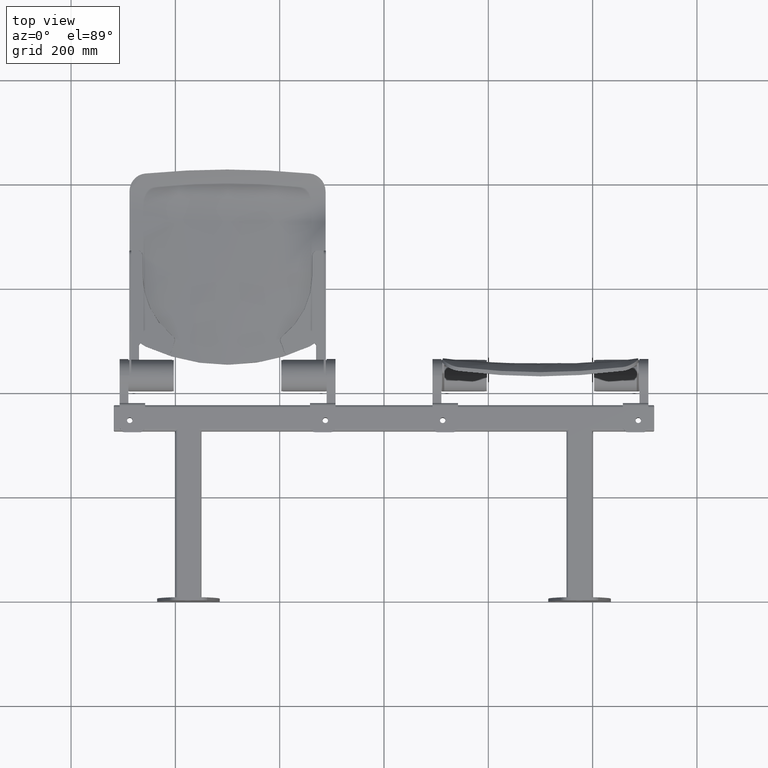
[diagram: clean part render]
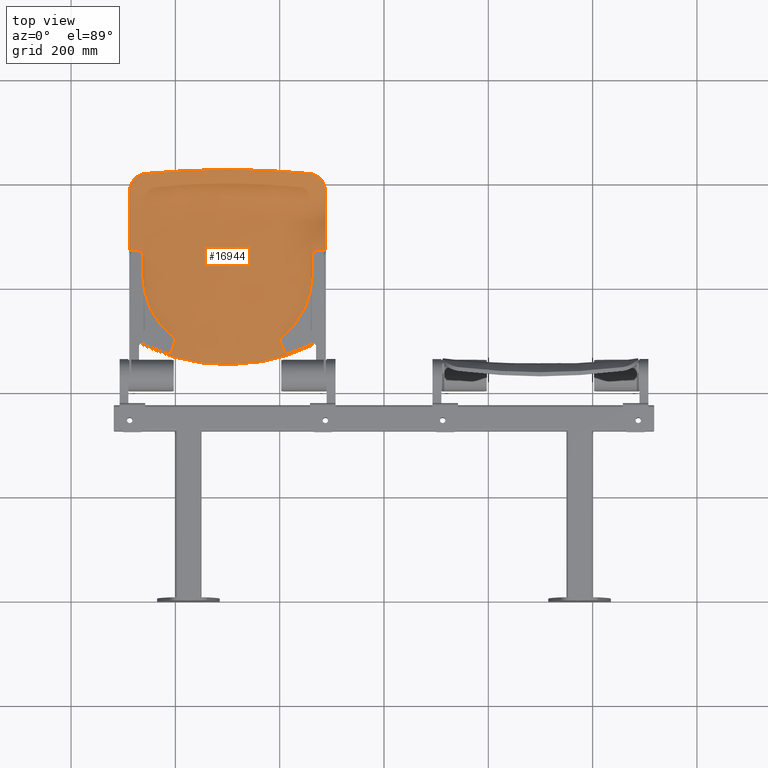
[diagram: same view with one face highlighted and labeled with its STEP entity id]
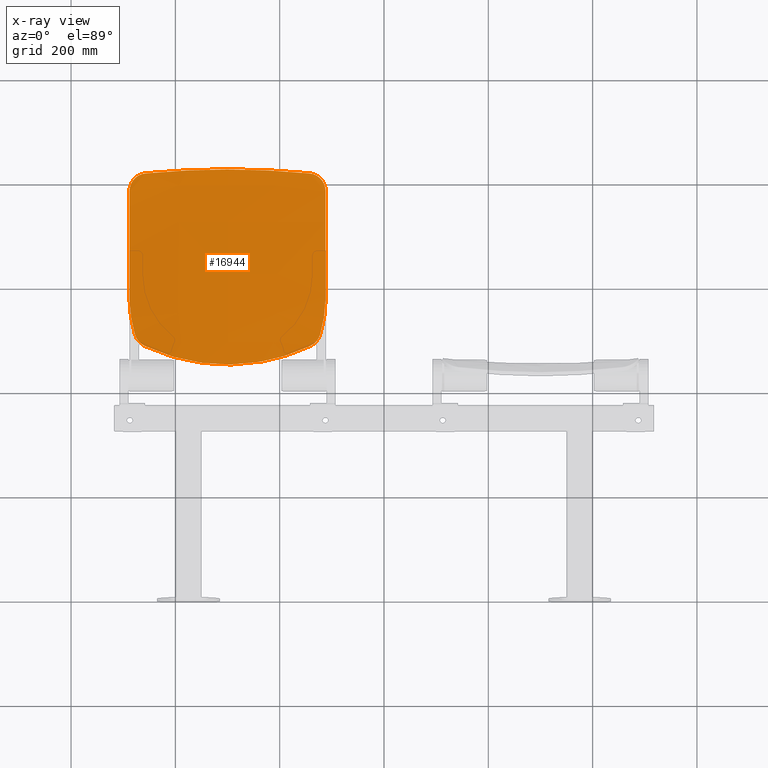
[diagram: x-ray of the same camera — body ghosted, the highlighted face saturated]
A machine part, top view. The second image highlights one B-rep face of the part: STEP entity #16944.
The next image is the same camera in x-ray: the body ghosted, the highlighted face saturated — about 0% of this face is hidden behind the body in this view.
In plain terms, the highlighted face is a freeform B-spline surface patch.
Its self-contained STEP definition (entity closure, byte-faithful):
#370 = ORIENTED_EDGE ( 'NONE', *, *, #15920, .T. ) ;
#371 = ORIENTED_EDGE ( 'NONE', *, *, #15902, .T. ) ;
#1373 = CARTESIAN_POINT ( 'NONE',  ( 165.0702873487034600, 3.626446478738039900, 386.1055464396943600 ) ) ;
#1378 = FACE_OUTER_BOUND ( 'NONE', #1847, .T. ) ;
#1791 = CARTESIAN_POINT ( 'NONE',  ( -188.0000000000001700, 20.73240032302049600, 154.5608413924775600 ) ) ;
#1847 = EDGE_LOOP ( 'NONE', ( #15064, #15065, #15066, #15067, #15068, #15069, #15070, #15071, #15072, #370, #371, #2039, #2040, #2041, #2042, #2043, #2044 ) ) ;
#2039 = ORIENTED_EDGE ( 'NONE', *, *, #15894, .T. ) ;
#2040 = ORIENTED_EDGE ( 'NONE', *, *, #15909, .T. ) ;
#2041 = ORIENTED_EDGE ( 'NONE', *, *, #15905, .T. ) ;
#2042 = ORIENTED_EDGE ( 'NONE', *, *, #15926, .T. ) ;
#2043 = ORIENTED_EDGE ( 'NONE', *, *, #15897, .T. ) ;
#2044 = ORIENTED_EDGE ( 'NONE', *, *, #15917, .T. ) ;
#4048 = CARTESIAN_POINT ( 'NONE',  ( 178.6058873567194800, 20.76878321230879400, 82.68356117116334800 ) ) ;
#4049 = CARTESIAN_POINT ( 'NONE',  ( -161.9307923834678600, 2.752106804156063500, 387.0462392302500800 ) ) ;
#4050 = CARTESIAN_POINT ( 'NONE',  ( -165.0111693090034600, 3.598810338090265800, 386.1385163882367800 ) ) ;
#4051 = CARTESIAN_POINT ( 'NONE',  ( -166.0170798147177300, 3.914268316039979800, 385.7889951144273900 ) ) ;
#4052 = CARTESIAN_POINT ( 'NONE',  ( -167.9885987635173000, 4.606542931886280300, 384.9967292030623300 ) ) ;
#4053 = CARTESIAN_POINT ( 'NONE',  ( -168.9576184954432800, 4.985169228536807200, 384.5516995295242900 ) ) ;
#4054 = CARTESIAN_POINT ( 'NONE',  ( -171.7460636960530800, 6.178910016592526600, 383.1070905339484500 ) ) ;
#4055 = CARTESIAN_POINT ( 'NONE',  ( -173.4675323211896800, 7.057407107268715200, 381.9931816724555300 ) ) ;
#4056 = CARTESIAN_POINT ( 'NONE',  ( -175.8713323209279100, 8.452154543490831200, 380.1030223356806300 ) ) ;
#4057 = CARTESIAN_POINT ( 'NONE',  ( -176.6441318135372300, 8.931177471548627600, 379.4341603454224700 ) ) ;
#4058 = CARTESIAN_POINT ( 'NONE',  ( -178.1095046152374000, 9.892075875023888200, 378.0426126705303900 ) ) ;
#4059 = CARTESIAN_POINT ( 'NONE',  ( -178.8051564765964700, 10.37561036633549500, 377.3177934891274400 ) ) ;
#4060 = CARTESIAN_POINT ( 'NONE',  ( -180.7881624504383400, 11.82347418487263500, 375.0547530868735200 ) ) ;
#4061 = CARTESIAN_POINT ( 'NONE',  ( -181.9727431512814300, 12.78538886778296800, 373.4291333556562900 ) ) ;
#4062 = CARTESIAN_POINT ( 'NONE',  ( -183.5499553526426800, 14.17291251884154200, 370.7895514188621200 ) ) ;
#4063 = CARTESIAN_POINT ( 'NONE',  ( -184.0362415702002200, 14.62097501948592500, 369.8853522762277100 ) ) ;
#4064 = CARTESIAN_POINT ( 'NONE',  ( -184.9273622507408000, 15.47583632196635500, 368.0357136656626800 ) ) ;
#4065 = CARTESIAN_POINT ( 'NONE',  ( -185.3330806321035300, 15.88343083200705800, 367.0887904106342000 ) ) ;
#4066 = CARTESIAN_POINT ( 'NONE',  ( -186.4308913911261500, 17.03495826228458300, 364.1772621606903000 ) ) ;
#4067 = CARTESIAN_POINT ( 'NONE',  ( -187.0056615143966200, 17.70287782458310800, 362.1408064175195100 ) ) ;
#4068 = CARTESIAN_POINT ( 'NONE',  ( -187.4992421827730000, 18.42086768193877300, 359.4685738363272700 ) ) ;
#4069 = CARTESIAN_POINT ( 'NONE',  ( -187.5865181345623400, 18.55857935892640100, 358.9278404748816300 ) ) ;
#4070 = CARTESIAN_POINT ( 'NONE',  ( -187.7361014725854900, 18.82008964843570500, 357.8441073164609600 ) ) ;
#4071 = CARTESIAN_POINT ( 'NONE',  ( -187.7986671728976400, 18.94424713672969300, 357.2998119175206300 ) ) ;
#4072 = CARTESIAN_POINT ( 'NONE',  ( -187.9493329945763100, 19.29777525371119000, 355.6597895335309000 ) ) ;
#4073 = CARTESIAN_POINT ( 'NONE',  ( -188.0004825359032200, 19.50823275101340900, 354.5569397770018400 ) ) ;
#4074 = CARTESIAN_POINT ( 'NONE',  ( -188.0003610163783500, 19.69525980169285600, 353.4448146262167300 ) ) ;
#4076 = CARTESIAN_POINT ( 'NONE',  ( 177.8472204437872200, 20.76877148168539100, 80.02891621790480800 ) ) ;
#4078 = CARTESIAN_POINT ( 'NONE',  ( -188.0000024197411800, 20.76857764545582400, 245.1419670024642100 ) ) ;
#4079 = CARTESIAN_POINT ( 'NONE',  ( 179.3835348694088600, 20.76878237019639400, 85.33285694113560300 ) ) ;
#4080 = CARTESIAN_POINT ( 'NONE',  ( 180.4999939035477000, 20.76874720672882900, 89.32089522993227600 ) ) ;
#4081 = CARTESIAN_POINT ( 'NONE',  ( 180.8638222991141600, 20.76872982299152800, 90.65264253498716600 ) ) ;
#4082 = CARTESIAN_POINT ( 'NONE',  ( 181.5611266435071200, 20.76868098867874600, 93.32445871744641900 ) ) ;
#4083 = CARTESIAN_POINT ( 'NONE',  ( 181.8930975678264300, 20.76834915134697100, 94.66486949970143900 ) ) ;
#4084 = CARTESIAN_POINT ( 'NONE',  ( 182.8280993581111300, 20.76856596307823500, 98.69902899841886800 ) ) ;
#4085 = CARTESIAN_POINT ( 'NONE',  ( 183.3672469910154300, 20.76842427263173400, 101.4048792084983600 ) ) ;
#4086 = CARTESIAN_POINT ( 'NONE',  ( 184.3140105771131500, 20.76826729232401900, 106.8422190946227800 ) ) ;
#4087 = CARTESIAN_POINT ( 'NONE',  ( 184.7214759461995500, 20.76821679897432200, 109.5737794669941800 ) ) ;
#4088 = CARTESIAN_POINT ( 'NONE',  ( 185.4418528627601900, 20.76828687822127500, 115.0461706839612600 ) ) ;
#4089 = CARTESIAN_POINT ( 'NONE',  ( 185.7561739485199700, 20.76866498995534700, 117.7883198406672100 ) ) ;
#4090 = CARTESIAN_POINT ( 'NONE',  ( 186.3305525823670900, 20.76939084379398500, 123.2791987333566400 ) ) ;
#4091 = CARTESIAN_POINT ( 'NONE',  ( 186.5879427975892800, 20.76932961438904000, 126.0273241447684400 ) ) ;
#4092 = CARTESIAN_POINT ( 'NONE',  ( 187.2808378865751700, 20.77023979094632700, 134.2788457638490100 ) ) ;
#4093 = CARTESIAN_POINT ( 'NONE',  ( 187.6293436118015400, 20.77049101113711100, 139.7890743229369300 ) ) ;
#4094 = CARTESIAN_POINT ( 'NONE',  ( 187.8561337348749600, 20.76826294022722400, 145.3053322055062900 ) ) ;
#4095 = CARTESIAN_POINT ( 'NONE',  ( 157.5625037644820500, 2.046636857515995000, 387.6770732073326300 ) ) ;
#4096 = CARTESIAN_POINT ( 'NONE',  ( 144.5156282662131800, 0.4506598321736429200, 388.9149170927779600 ) ) ;
#4100 = CARTESIAN_POINT ( 'NONE',  ( -187.9604046388981300, 20.88634824880935200, 228.4731107302308400 ) ) ;
#4101 = CARTESIAN_POINT ( 'NONE',  ( 131.4506567813060900, -1.004206143683820600, 389.9993890497918300 ) ) ;
#4102 = CARTESIAN_POINT ( 'NONE',  ( 105.2788812478166600, -3.553377855088407900, 391.8610998422721000 ) ) ;
#4103 = CARTESIAN_POINT ( 'NONE',  ( 92.17204988503615900, -4.647305583790006800, 392.6383344618866400 ) ) ;
#4104 = CARTESIAN_POINT ( 'NONE',  ( 65.91242817795412600, -6.418182980166536200, 393.8839853164749900 ) ) ;
#4105 = CARTESIAN_POINT ( 'NONE',  ( 52.75964958396218000, -7.095301693092512400, 394.3523945081560700 ) ) ;
#4106 = CARTESIAN_POINT ( 'NONE',  ( 32.99426741446433200, -7.775257858895956000, 394.8215251450517400 ) ) ;
#4107 = CARTESIAN_POINT ( 'NONE',  ( 26.39978315308833600, -7.946130725482060300, 394.9389818200099300 ) ) ;
#4108 = CARTESIAN_POINT ( 'NONE',  ( 16.49889511264953900, -8.117215136770408200, 395.0565020817865000 ) ) ;
#4109 = CARTESIAN_POINT ( 'NONE',  ( 13.19666308892634500, -8.160042633322543500, 395.0858945184969600 ) ) ;
#4110 = CARTESIAN_POINT ( 'NONE',  ( 6.596448681924365500, -8.217108218839364000, 395.1250516012693800 ) ) ;
#4111 = CARTESIAN_POINT ( 'NONE',  ( 3.297597398077783300, -8.231365592305294900, 395.1348294431981000 ) ) ;
#4112 = CARTESIAN_POINT ( 'NONE',  ( 2.648100412316227500E-011, -8.231365592305369500, 395.1348294431980400 ) ) ;
#4115 = CARTESIAN_POINT ( 'NONE',  ( -187.8516178611183100, 20.79925682909749100, 211.8037675155353300 ) ) ;
#4116 = CARTESIAN_POINT ( 'NONE',  ( -188.0002704932509200, 20.76870075088539700, 195.1348687407526400 ) ) ;
#7403 = CARTESIAN_POINT ( 'NONE',  ( 2.648100412316227500E-011, -8.231365592305369500, 395.1348294431980400 ) ) ;
#7404 = CARTESIAN_POINT ( 'NONE',  ( -13.20698769630251400, -8.231365592305675000, 395.1348294431982100 ) ) ;
#7413 = CARTESIAN_POINT ( 'NONE',  ( 188.0008113306029100, 19.68966097000120300, 353.4487847977398500 ) ) ;
#7418 = CARTESIAN_POINT ( 'NONE',  ( 188.0001832733614400, 19.32086501596390300, 355.6701718077223400 ) ) ;
#7419 = CARTESIAN_POINT ( 'NONE',  ( -26.39382860236425900, -8.002075075240098200, 394.9780139128624800 ) ) ;
#7420 = CARTESIAN_POINT ( 'NONE',  ( -52.72801451827248100, -7.096636475589828100, 394.3533174906716000 ) ) ;
#7421 = CARTESIAN_POINT ( 'NONE',  ( -65.87534721530467200, -6.420275734356474500, 393.8854406564926800 ) ) ;
#7422 = CARTESIAN_POINT ( 'NONE',  ( -92.13234105450263200, -4.650390133074344200, 392.6405208341699900 ) ) ;
#7423 = CARTESIAN_POINT ( 'NONE',  ( -105.2419921466284500, -3.556689801684516500, 391.8634837664969800 ) ) ;
#7424 = CARTESIAN_POINT ( 'NONE',  ( -131.4268789399799300, -1.006802601280001300, 390.0013200699652900 ) ) ;
#7425 = CARTESIAN_POINT ( 'NONE',  ( -144.5021368033164600, 0.4490094703678659800, 388.9161971176283100 ) ) ;
#7426 = CARTESIAN_POINT ( 'NONE',  ( -157.5625037645712000, 2.046636857521823700, 387.6770732073621800 ) ) ;
#7427 = CARTESIAN_POINT ( 'NONE',  ( -188.0000043415346300, 20.76875424391301600, 295.1388003201665200 ) ) ;
#7428 = CARTESIAN_POINT ( 'NONE',  ( -187.9999999999998000, 20.54675829166112800, 286.8059957899040500 ) ) ;
#7429 = CARTESIAN_POINT ( 'NONE',  ( 187.7972898963043600, 18.85739096823871800, 357.8361433858999000 ) ) ;
#7430 = CARTESIAN_POINT ( 'NONE',  ( 187.2174730194040300, 18.00956501215630800, 361.0031025979952800 ) ) ;
#7431 = CARTESIAN_POINT ( 'NONE',  ( 186.9779731111521000, 17.70139897728019900, 362.0450090595342100 ) ) ;
#7432 = CARTESIAN_POINT ( 'NONE',  ( 186.4080053036040900, 17.02907741658589600, 364.1003200955858000 ) ) ;
#7433 = CARTESIAN_POINT ( 'NONE',  ( 186.0760370870433700, 16.66299924834195100, 365.1165258324844600 ) ) ;
#7434 = CARTESIAN_POINT ( 'NONE',  ( 184.9680422570492900, 15.50002160056362000, 368.0605664574726500 ) ) ;
#7435 = CARTESIAN_POINT ( 'NONE',  ( 184.0764205241787600, 14.63659563935350900, 369.9060906947830200 ) ) ;
#7436 = CARTESIAN_POINT ( 'NONE',  ( 182.7742039139970700, 13.49032896525359800, 372.0884097828467800 ) ) ;
#7437 = CARTESIAN_POINT ( 'NONE',  ( 182.5042643782259700, 13.25769898595174600, 372.5185759236134700 ) ) ;
#7438 = CARTESIAN_POINT ( 'NONE',  ( 181.9450365597996600, 12.78668259519669800, 373.3666007206280100 ) ) ;
#7439 = CARTESIAN_POINT ( 'NONE',  ( 181.6551164315469300, 12.54779334324861200, 373.7853075195754400 ) ) ;
#7440 = CARTESIAN_POINT ( 'NONE',  ( 180.7608182666475900, 11.82819277763271500, 375.0161005529601000 ) ) ;
#7441 = CARTESIAN_POINT ( 'NONE',  ( 180.1327243867388000, 11.34506603623614600, 375.8023234204249500 ) ) ;
#7442 = CARTESIAN_POINT ( 'NONE',  ( 178.1512682785179000, 9.897883977909275500, 378.0648693749528200 ) ) ;
#7443 = CARTESIAN_POINT ( 'NONE',  ( 176.7019067833086900, 8.935940384569731200, 379.4461922016202500 ) ) ;
#7444 = CARTESIAN_POINT ( 'NONE',  ( 174.7079365393491100, 7.776682268013193100, 381.0187052177830700 ) ) ;
#7445 = CARTESIAN_POINT ( 'NONE',  ( 174.2999346565027800, 7.546994917835530000, 381.3254097921094400 ) ) ;
#7446 = CARTESIAN_POINT ( 'NONE',  ( 173.4645548477258200, 7.092995692675131600, 381.9229595959647600 ) ) ;
#7447 = CARTESIAN_POINT ( 'NONE',  ( 173.0376827018280300, 6.869007037232093700, 382.2133583585599000 ) ) ;
#7448 = CARTESIAN_POINT ( 'NONE',  ( 171.7394329051417100, 6.213009087676619300, 383.0523129788101600 ) ) ;
#7449 = CARTESIAN_POINT ( 'NONE',  ( 170.8466774147736700, 5.794866159952860600, 383.5714805229006300 ) ) ;
#7450 = CARTESIAN_POINT ( 'NONE',  ( 169.0037124329706400, 5.003956277876776300, 384.5293115234221700 ) ) ;
#7451 = CARTESIAN_POINT ( 'NONE',  ( 168.0535150792808300, 4.631168669470887300, 384.9679827744885800 ) ) ;
#7452 = CARTESIAN_POINT ( 'NONE',  ( 166.5817020257120200, 4.111706744754731500, 385.5632919447806400 ) ) ;
#7453 = CARTESIAN_POINT ( 'NONE',  ( 166.0833309617957500, 3.945179384586966300, 385.7512557301382100 ) ) ;
#7878 = CARTESIAN_POINT ( 'NONE',  ( -183.3667875600375500, 20.76842436018411700, 101.4024990322088100 ) ) ;
#7879 = CARTESIAN_POINT ( 'NONE',  ( -182.8276236080093000, 20.76856539767488400, 98.69676049582594100 ) ) ;
#7880 = CARTESIAN_POINT ( 'NONE',  ( -181.8924959897398100, 20.76834923969929000, 94.66238199118087900 ) ) ;
#7881 = CARTESIAN_POINT ( 'NONE',  ( -181.5604925168917100, 20.76868104141195900, 93.32196488731492000 ) ) ;
#7882 = CARTESIAN_POINT ( 'NONE',  ( -180.8633813133173500, 20.76872984553858000, 90.65101702499924800 ) ) ;
#7883 = CARTESIAN_POINT ( 'NONE',  ( -180.4996515656308400, 20.76874722044870600, 89.31965642682985200 ) ) ;
#7884 = CARTESIAN_POINT ( 'NONE',  ( -179.3833899269847100, 20.76878236888227000, 85.33237113408149800 ) ) ;
#7885 = CARTESIAN_POINT ( 'NONE',  ( -178.6058152103351200, 20.76878321119306400, 82.68330872436452200 ) ) ;
#7886 = CARTESIAN_POINT ( 'NONE',  ( -177.8472204437869700, 20.76877148168528100, 80.02891621790414000 ) ) ;
#7887 = CARTESIAN_POINT ( 'NONE',  ( 160.9680188834951500, 17.73354075608154200, 58.02742265166029500 ) ) ;
#7888 = CARTESIAN_POINT ( 'NONE',  ( 158.6470066615812900, 17.20852178291561100, 56.92407457527210100 ) ) ;
#7895 = CARTESIAN_POINT ( 'NONE',  ( 163.1276418451970500, 18.22294464349656100, 59.37097625333789400 ) ) ;
#7896 = CARTESIAN_POINT ( 'NONE',  ( 166.1400320896924500, 18.88604060083806500, 61.73080094343958300 ) ) ;
#7897 = CARTESIAN_POINT ( 'NONE',  ( 167.1059881308573600, 19.09509690542424900, 62.57534211971182700 ) ) ;
#7898 = CARTESIAN_POINT ( 'NONE',  ( 168.4966244944377300, 19.38700751335102300, 63.93169029018180500 ) ) ;
#7899 = CARTESIAN_POINT ( 'NONE',  ( 168.9483958727412300, 19.48024757131236500, 64.39689155295224100 ) ) ;
#7900 = CARTESIAN_POINT ( 'NONE',  ( 169.8225287260735600, 19.65688857898604500, 65.34635787867596000 ) ) ;
#7901 = CARTESIAN_POINT ( 'NONE',  ( 170.2459107984023200, 19.74051133937869600, 65.83160995255818200 ) ) ;
#7902 = CARTESIAN_POINT ( 'NONE',  ( 172.2958274183403700, 20.13483389405554300, 68.30946892741727100 ) ) ;
#7903 = CARTESIAN_POINT ( 'NONE',  ( 173.7238859841596900, 20.37411746130427300, 70.45506174802406500 ) ) ;
#7904 = CARTESIAN_POINT ( 'NONE',  ( 175.2416462503794300, 20.57338092186168400, 73.34356764168481400 ) ) ;
#7905 = CARTESIAN_POINT ( 'NONE',  ( 175.5315022983829200, 20.60820212117079100, 73.93161133157833800 ) ) ;
#7906 = CARTESIAN_POINT ( 'NONE',  ( 176.0785453663098400, 20.66732404252907800, 75.11745352252820900 ) ) ;
#7907 = CARTESIAN_POINT ( 'NONE',  ( 176.3364802591625300, 20.69172764876079600, 75.71662438389006400 ) ) ;
#7908 = CARTESIAN_POINT ( 'NONE',  ( 177.0638284816673700, 20.74994188980132700, 77.53275346466681100 ) ) ;
#7909 = CARTESIAN_POINT ( 'NONE',  ( 177.4869414852557600, 20.76876593689940600, 78.76826681285037100 ) ) ;
#7910 = CARTESIAN_POINT ( 'NONE',  ( 177.8472204437872200, 20.76877148168539100, 80.02891621790480800 ) ) ;
#7915 = CARTESIAN_POINT ( 'NONE',  ( -152.5139461310511100, 15.82120719273344100, 54.00858194611816300 ) ) ;
#7917 = CARTESIAN_POINT ( 'NONE',  ( -158.6470066615885300, 17.20852178291561100, 56.92407457525688800 ) ) ;
#7920 = CARTESIAN_POINT ( 'NONE',  ( -146.3237514000865100, 14.46630350993418200, 51.27293858001855400 ) ) ;
#7921 = CARTESIAN_POINT ( 'NONE',  ( -133.8223658919739300, 11.88472520544387500, 46.15189197871374900 ) ) ;
#7922 = CARTESIAN_POINT ( 'NONE',  ( -127.5112275250268800, 10.65755652935141700, 43.76656248265194200 ) ) ;
#7923 = CARTESIAN_POINT ( 'NONE',  ( -114.7639314481753000, 8.363964109044303500, 39.34326463750348100 ) ) ;
#7924 = CARTESIAN_POINT ( 'NONE',  ( -108.3278203977966100, 7.297149032115518400, 37.30533699559144600 ) ) ;
#7925 = CARTESIAN_POINT ( 'NONE',  ( -95.32765896566128600, 5.340321209575727800, 33.57863069835323000 ) ) ;
#7926 = CARTESIAN_POINT ( 'NONE',  ( -88.76363803704036600, 4.450084348576412600, 31.88986596154720500 ) ) ;
#7927 = CARTESIAN_POINT ( 'NONE',  ( -75.50468742558540200, 2.855246151098161300, 28.86715746075177300 ) ) ;
#7928 = CARTESIAN_POINT ( 'NONE',  ( -68.80978165121897000, 2.150488928068222900, 27.53321160825833000 ) ) ;
#7929 = CARTESIAN_POINT ( 'NONE',  ( -58.66645037018921700, 1.237501805329758600, 25.80547783780982500 ) ) ;
#7930 = CARTESIAN_POINT ( 'NONE',  ( -55.26850312656743800, 0.9571936537960538100, 25.27512709527126200 ) ) ;
#7931 = CARTESIAN_POINT ( 'NONE',  ( -50.14588653438692500, 0.5734443313318586800, 24.54910644716743200 ) ) ;
#7932 = CARTESIAN_POINT ( 'NONE',  ( -48.43406436606687000, 0.4516473401142918600, 24.31868583339880300 ) ) ;
#7933 = CARTESIAN_POINT ( 'NONE',  ( -45.00177126421061800, 0.2204154373137373900, 23.88123639168481200 ) ) ;
#7934 = CARTESIAN_POINT ( 'NONE',  ( -43.28131495350283600, 0.1109931981291348700, 23.67423092865755100 ) ) ;
#7935 = CARTESIAN_POINT ( 'NONE',  ( -27.79879852014981300, -0.8153552541900861400, 21.92174943098836000 ) ) ;
#7936 = CARTESIAN_POINT ( 'NONE',  ( -13.97599359971100900, -1.229528219870969400, 21.13830415327201000 ) ) ;
#7937 = CARTESIAN_POINT ( 'NONE',  ( 13.79164523789719800, -1.233190806839174100, 21.13137772527573700 ) ) ;
#7938 = CARTESIAN_POINT ( 'NONE',  ( 27.52730618652287500, -0.8226915584801209900, 21.90786981962545400 ) ) ;
#7939 = CARTESIAN_POINT ( 'NONE',  ( 54.71003125570353400, 0.7861727647612647400, 24.95154757344035400 ) ) ;
#7940 = CARTESIAN_POINT ( 'NONE',  ( 68.15791944664441400, 1.985486190646049900, 27.21896412275002000 ) ) ;
#7941 = CARTESIAN_POINT ( 'NONE',  ( 88.11667955226798200, 4.365810519770730200, 31.73001662803182700 ) ) ;
#7942 = CARTESIAN_POINT ( 'NONE',  ( 94.73400708328307500, 5.256355367094117000, 33.41911244316225500 ) ) ;
#7943 = CARTESIAN_POINT ( 'NONE',  ( 102.9610215992037900, 6.488224780132000500, 35.76469118256586900 ) ) ;
#7944 = CARTESIAN_POINT ( 'NONE',  ( 104.6041919002381900, 6.740520118431065900, 36.24552658860660200 ) ) ;
#7945 = CARTESIAN_POINT ( 'NONE',  ( 107.8860628356463300, 7.256822143652810200, 37.23073575288720600 ) ) ;
#7946 = CARTESIAN_POINT ( 'NONE',  ( 109.5255197848544800, 7.520959466885134500, 37.73535959441884600 ) ) ;
#7947 = CARTESIAN_POINT ( 'NONE',  ( 114.4258576345850600, 8.328781750068960900, 39.28107087823936200 ) ) ;
#7948 = CARTESIAN_POINT ( 'NONE',  ( 117.6717565419127700, 8.888360746597522100, 40.35485797923724500 ) ) ;
#7949 = CARTESIAN_POINT ( 'NONE',  ( 127.3477859255645900, 10.62588164938702600, 43.70496435536387000 ) ) ;
#7950 = CARTESIAN_POINT ( 'NONE',  ( 133.7161802713735300, 11.86333866442435300, 46.10983611969705700 ) ) ;
#7951 = CARTESIAN_POINT ( 'NONE',  ( 146.2963923691725900, 14.46011834298788700, 51.26030465745976300 ) ) ;
#7952 = CARTESIAN_POINT ( 'NONE',  ( 152.5081498132995000, 15.81989605032691200, 54.00582653280557800 ) ) ;
#7953 = CARTESIAN_POINT ( 'NONE',  ( 158.6470066615812900, 17.20852178291561100, 56.92407457527210100 ) ) ;
#7960 = CARTESIAN_POINT ( 'NONE',  ( 188.0000000000000300, 20.73240032302055300, 154.5608413924775600 ) ) ;
#7964 = CARTESIAN_POINT ( 'NONE',  ( -188.0003610163783500, 19.69525980169285600, 353.4448146262167300 ) ) ;
#7965 = CARTESIAN_POINT ( 'NONE',  ( -188.0003610290081900, 20.10003408173287200, 351.0380257441916600 ) ) ;
#7969 = CARTESIAN_POINT ( 'NONE',  ( 188.0000000000000300, 20.66261550035862600, 168.0855903337334500 ) ) ;
#7970 = CARTESIAN_POINT ( 'NONE',  ( -188.0002597949878700, 20.41128037194348700, 348.6204556509501300 ) ) ;
#7971 = CARTESIAN_POINT ( 'NONE',  ( -187.9999572090671300, 20.91371395486159600, 343.7714759250343900 ) ) ;
#7972 = CARTESIAN_POINT ( 'NONE',  ( -187.9995504176876900, 21.10686941421676400, 341.3382427010866400 ) ) ;
#7973 = CARTESIAN_POINT ( 'NONE',  ( -187.9982616760709400, 21.53901445741883300, 334.0402310960345700 ) ) ;
#7974 = CARTESIAN_POINT ( 'NONE',  ( -187.9970786169041900, 21.62889871976726400, 329.1762628582104100 ) ) ;
#7975 = CARTESIAN_POINT ( 'NONE',  ( -187.9944582942702300, 21.54835676745498000, 314.5867836322047400 ) ) ;
#7976 = CARTESIAN_POINT ( 'NONE',  ( -187.9941656677847600, 21.02699610735854900, 304.8637032570419500 ) ) ;
#7977 = CARTESIAN_POINT ( 'NONE',  ( -188.0000043415346300, 20.76875424391301600, 295.1388003201665200 ) ) ;
#7978 = CARTESIAN_POINT ( 'NONE',  ( -187.9999985197239900, 20.74669016184527200, 151.7913124840393100 ) ) ;
#7979 = CARTESIAN_POINT ( 'NONE',  ( -188.0000000000001700, 20.73240032302049600, 154.5608413924775600 ) ) ;
#7980 = CARTESIAN_POINT ( 'NONE',  ( 188.0000000000000000, 20.71787559950655900, 181.6102276048622700 ) ) ;
#7981 = CARTESIAN_POINT ( 'NONE',  ( 188.0002704937090800, 20.76870075447130800, 195.1348686472438800 ) ) ;
#7988 = CARTESIAN_POINT ( 'NONE',  ( -187.9617645721786500, 20.75891041311545800, 148.7059495477198500 ) ) ;
#7989 = CARTESIAN_POINT ( 'NONE',  ( -187.8561337672505000, 20.76826293940671400, 145.3053330435444900 ) ) ;
#7994 = CARTESIAN_POINT ( 'NONE',  ( -159.7943611095355400, 2.319651905510944800, 387.4653220429654500 ) ) ;
#7995 = CARTESIAN_POINT ( 'NONE',  ( -157.5625037645712000, 2.046636857521823700, 387.6770732073621800 ) ) ;
#10801 = B_SPLINE_SURFACE_WITH_KNOTS ( 'NONE', 3, 3, ( 
 ( #12919, #12927, #12928, #12929, #12930, #12931, #12932, #12933, #12934, #12935, #12936, #12937, #12938, #12939, #12940, #12941 ),
 ( #12942, #12943, #12944, #12945, #12946, #12947, #12948, #12949, #12950, #12951, #12952, #12953, #12954, #12955, #12956, #12957 ),
 ( #12958, #12959, #12960, #12961, #12962, #12963, #12964, #12965, #12966, #12967, #12968, #12969, #12970, #12971, #12972, #12973 ),
 ( #12974, #12975, #12976, #12977, #12978, #12979, #12980, #12981, #12982, #12983, #12984, #12985, #12986, #12987, #12988, #12989 ),
 ( #12990, #12991, #12992, #12993, #12994, #12995, #12996, #12997, #12998, #12999, #13000, #13001, #13002, #13003, #13004, #13005 ),
 ( #13006, #13007, #13008, #13009, #13010, #13011, #13012, #13013, #13014, #13015, #13016, #13017, #13018, #13019, #13020, #13021 ),
 ( #13022, #13023, #13024, #13025, #13026, #13027, #13028, #13029, #13030, #13031, #13032, #13033, #13034, #13035, #13036, #13037 ),
 ( #13038, #13039, #13040, #13041, #13042, #13043, #13044, #13045, #13046, #13047, #13048, #13049, #13050, #13051, #13052, #13053 ),
 ( #13054, #13055, #13056, #13057, #13058, #13059, #13060, #13061, #13062, #13063, #13064, #13065, #13066, #13067, #13068, #13069 ),
 ( #13070, #13071, #13072, #13073, #13074, #13075, #13076, #13077, #13078, #13079, #13080, #13081, #13082, #13083, #13084, #13085 ),
 ( #13086, #13087, #13088, #13089, #13090, #13091, #13092, #13093, #13094, #13095, #13096, #13097, #13098, #13099, #13100, #13101 ),
 ( #13102, #13103, #13104, #13105, #13106, #13107, #13108, #13109, #13110, #13111, #13112, #13113, #13114, #13115, #13116, #13117 ),
 ( #13118, #13119, #13120, #13121, #13122, #13123, #13124, #13125, #13126, #13127, #13128, #13129, #13130, #13131, #13132, #13133 ),
 ( #13134, #13135, #13136, #13137, #13138, #13139, #13140, #13141, #13142, #13143, #13144, #13145, #13146, #13147, #13148, #13149 ),
 ( #13150, #13151, #13152, #13153, #13154, #13155, #13156, #13157, #13158, #13159, #13160, #13161, #13162, #13163, #13164, #13165 ),
 ( #13166, #13167, #13168, #13169, #13170, #13171, #13172, #13173, #13174, #13175, #13176, #13177, #13178, #13179, #13180, #13181 ),
 ( #13182, #13183, #13184, #13185, #13186, #13187, #13188, #13189, #13190, #13191, #13192, #13193, #13194, #13195, #13196, #13197 ),
 ( #13198, #13199, #13200, #13201, #13202, #13203, #13204, #13205, #13206, #13207, #13208, #13209, #13210, #13211, #13212, #13213 ) ),
 .UNSPECIFIED., .F., .F., .F.,
 ( 4, 3, 1, 1, 1, 2, 1, 1, 1, 3, 4 ),
 ( 4, 1, 1, 1, 1, 1, 1, 1, 1, 1, 3, 4 ),
 ( -0.01000000000000000000, 0.0000000000000000000, 0.1250000000000000300, 0.2500000000000000600, 0.3750000000000001100, 0.5000000000000001100, 0.6250000000000001100, 0.7500000000000000000, 0.8750000000000000000, 1.000000000000000000, 1.010100000000000000 ),
 ( 0.0000000000000000000, 0.1147218755964356400, 0.1948007983974813000, 0.2606139848572682200, 0.3264298036242167000, 0.4581111813546794300, 0.5901538615926241700, 0.7220127297153236000, 0.8538715978388121700, 0.9065204622699966100, 1.000000000000000000, 1.010000000000000000 ),
 .UNSPECIFIED. ) ;
#11258 = CARTESIAN_POINT ( 'NONE',  ( -187.8561337672505000, 20.76826293940671400, 145.3053330435444900 ) ) ;
#11259 = CARTESIAN_POINT ( 'NONE',  ( -177.8472204437869700, 20.76877148168528100, 80.02891621790414000 ) ) ;
#11260 = CARTESIAN_POINT ( 'NONE',  ( 158.6470066615812900, 17.20852178291561100, 56.92407457527210100 ) ) ;
#11261 = CARTESIAN_POINT ( 'NONE',  ( 187.8561337348749600, 20.76826294022722400, 145.3053322055062900 ) ) ;
#11262 = CARTESIAN_POINT ( 'NONE',  ( -158.6470066615885300, 17.20852178291561100, 56.92407457525688800 ) ) ;
#11263 = CARTESIAN_POINT ( 'NONE',  ( 177.8472204437872200, 20.76877148168539100, 80.02891621790480800 ) ) ;
#11264 = CARTESIAN_POINT ( 'NONE',  ( 188.0000000000000300, 20.73240032302055300, 154.5608413924775600 ) ) ;
#12919 = CARTESIAN_POINT ( 'NONE',  ( -177.5078859497257600, 21.64399483502256400, 21.13482944319644500 ) ) ;
#12927 = CARTESIAN_POINT ( 'NONE',  ( -176.1929585820747900, 21.64349040708452800, 35.66151018004604400 ) ) ;
#12928 = CARTESIAN_POINT ( 'NONE',  ( -173.9601769114353300, 21.64263387501903700, 60.32820073833333700 ) ) ;
#12929 = CARTESIAN_POINT ( 'NONE',  ( -186.1897008547052200, 21.64732532315334600, 93.32833654055001200 ) ) ;
#12930 = CARTESIAN_POINT ( 'NONE',  ( -189.9127170051849300, 21.63573969133376800, 120.1362454913546600 ) ) ;
#12931 = CARTESIAN_POINT ( 'NONE',  ( -192.4592217056646200, 21.62880645844390800, 153.4697470938737900 ) ) ;
#12932 = CARTESIAN_POINT ( 'NONE',  ( -191.4397810946273600, 21.53550543595457600, 195.2365378222172300 ) ) ;
#12933 = CARTESIAN_POINT ( 'NONE',  ( -191.7960598742048400, 21.60417351229394700, 245.0373924539753100 ) ) ;
#12934 = CARTESIAN_POINT ( 'NONE',  ( -191.7186074622944100, 20.49213520771388300, 295.3056468002249100 ) ) ;
#12935 = CARTESIAN_POINT ( 'NONE',  ( -191.7405075052198200, 23.42127038169773800, 334.6698681689800900 ) ) ;
#12936 = CARTESIAN_POINT ( 'NONE',  ( -191.7592815000314800, 17.18523174344123600, 371.0557791000745200 ) ) ;
#12937 = CARTESIAN_POINT ( 'NONE',  ( -191.7566067534347400, 5.490054076077669300, 385.7407396810851900 ) ) ;
#12938 = CARTESIAN_POINT ( 'NONE',  ( -191.7548956960926600, -1.991447027379801900, 395.1348294431970800 ) ) ;
#12939 = CARTESIAN_POINT ( 'NONE',  ( -191.7547126552493100, -2.791782724916760800, 396.1397648536871500 ) ) ;
#12940 = CARTESIAN_POINT ( 'NONE',  ( -191.7545296144059800, -3.592118422453720600, 397.1447002641771700 ) ) ;
#12941 = CARTESIAN_POINT ( 'NONE',  ( -191.7543465735626300, -4.392454119990675900, 398.1496356746671400 ) ) ;
#12942 = CARTESIAN_POINT ( 'NONE',  ( -176.3717772607787400, 21.35220802591332400, 21.13482944319644500 ) ) ;
#12943 = CARTESIAN_POINT ( 'NONE',  ( -175.0655948374306100, 21.35185024850694900, 35.66151018004604400 ) ) ;
#12944 = CARTESIAN_POINT ( 'NONE',  ( -172.8476623149879000, 21.35124273294771100, 60.32820073833333700 ) ) ;
#12945 = CARTESIAN_POINT ( 'NONE',  ( -184.9958536247105500, 21.35457025313271400, 93.32833654055001200 ) ) ;
#12946 = CARTESIAN_POINT ( 'NONE',  ( -188.6935843980153900, 21.34627270417306700, 120.1362454913546600 ) ) ;
#12947 = CARTESIAN_POINT ( 'NONE',  ( -191.2224053028616600, 21.34439280519236000, 153.4697470938737900 ) ) ;
#12948 = CARTESIAN_POINT ( 'NONE',  ( -190.2081116190174700, 21.26121780145058400, 195.2365378222172300 ) ) ;
#12949 = CARTESIAN_POINT ( 'NONE',  ( -190.5535382328385500, 21.39397070302957700, 245.0373924539753100 ) ) ;
#12950 = CARTESIAN_POINT ( 'NONE',  ( -190.4727912743064500, 20.33018698133366800, 295.3056468002249100 ) ) ;
#12951 = CARTESIAN_POINT ( 'NONE',  ( -190.4942562141737300, 23.24458608775638200, 334.6698681689800900 ) ) ;
#12952 = CARTESIAN_POINT ( 'NONE',  ( -190.5060094861553400, 17.13473843971376100, 371.0557791000745200 ) ) ;
#12953 = CARTESIAN_POINT ( 'NONE',  ( -190.5043349877579100, 5.421582237405967700, 385.7407396810851900 ) ) ;
#12954 = CARTESIAN_POINT ( 'NONE',  ( -190.5032637973952500, -2.071419882354931900, 395.1348294431970800 ) ) ;
#12955 = CARTESIAN_POINT ( 'NONE',  ( -190.5031492065030800, -2.872985904365302100, 396.1397648536871500 ) ) ;
#12956 = CARTESIAN_POINT ( 'NONE',  ( -190.5030346156109100, -3.674551926375673200, 397.1447002641771700 ) ) ;
#12957 = CARTESIAN_POINT ( 'NONE',  ( -190.5029200247187500, -4.476117948386095300, 398.1496356746671400 ) ) ;
#12958 = CARTESIAN_POINT ( 'NONE',  ( -175.2356685718317000, 21.06042121680414100, 21.13482944319644500 ) ) ;
#12959 = CARTESIAN_POINT ( 'NONE',  ( -173.9382310927864500, 21.06021008992937400, 35.66151018004604400 ) ) ;
#12960 = CARTESIAN_POINT ( 'NONE',  ( -171.7351477185404700, 21.05985159087638100, 60.32820073833333700 ) ) ;
#12961 = CARTESIAN_POINT ( 'NONE',  ( -183.8020063947159000, 21.06181518311207800, 93.32833654055001200 ) ) ;
#12962 = CARTESIAN_POINT ( 'NONE',  ( -187.4744517908458500, 21.05680571701242000, 120.1362454913546600 ) ) ;
#12963 = CARTESIAN_POINT ( 'NONE',  ( -189.9855889000587000, 21.05997915194081200, 153.4697470938737900 ) ) ;
#12964 = CARTESIAN_POINT ( 'NONE',  ( -188.9764421434075000, 20.98693016694659600, 195.2365378222172300 ) ) ;
#12965 = CARTESIAN_POINT ( 'NONE',  ( -189.3110165914722500, 21.18376789376526400, 245.0373924539753100 ) ) ;
#12966 = CARTESIAN_POINT ( 'NONE',  ( -189.2269750863184800, 20.16823875495350600, 295.3056468002249100 ) ) ;
#12967 = CARTESIAN_POINT ( 'NONE',  ( -189.2480049231277000, 23.06790179381497600, 334.6698681689800900 ) ) ;
#12968 = CARTESIAN_POINT ( 'NONE',  ( -189.2527374722792500, 17.08424513598623300, 371.0557791000745200 ) ) ;
#12969 = CARTESIAN_POINT ( 'NONE',  ( -189.2520632220811500, 5.353110398734265200, 385.7407396810851900 ) ) ;
#12970 = CARTESIAN_POINT ( 'NONE',  ( -189.2516318986978100, -2.151392737330006400, 395.1348294431970800 ) ) ;
#12971 = CARTESIAN_POINT ( 'NONE',  ( -189.2515857577568300, -2.954189083813844300, 396.1397648536871500 ) ) ;
#12972 = CARTESIAN_POINT ( 'NONE',  ( -189.2515396168158500, -3.756985430297681300, 397.1447002641771700 ) ) ;
#12973 = CARTESIAN_POINT ( 'NONE',  ( -189.2514934758748700, -4.559781776781458800, 398.1496356746671400 ) ) ;
#12974 = CARTESIAN_POINT ( 'NONE',  ( -174.0995598828846800, 20.76863440769490100, 21.13482944319644500 ) ) ;
#12975 = CARTESIAN_POINT ( 'NONE',  ( -172.8108673481422700, 20.76856993135179500, 35.66151018004604400 ) ) ;
#12976 = CARTESIAN_POINT ( 'NONE',  ( -170.6226331220930500, 20.76846044880499400, 60.32820073833333700 ) ) ;
#12977 = CARTESIAN_POINT ( 'NONE',  ( -182.6081591647212900, 20.76906011309150200, 93.32833654055001200 ) ) ;
#12978 = CARTESIAN_POINT ( 'NONE',  ( -186.2553191836763100, 20.76733872985171600, 120.1362454913546600 ) ) ;
#12979 = CARTESIAN_POINT ( 'NONE',  ( -188.7487724972557400, 20.77556549868926800, 153.4697470938737900 ) ) ;
#12980 = CARTESIAN_POINT ( 'NONE',  ( -187.7447726677975800, 20.71264253244266100, 195.2365378222172300 ) ) ;
#12981 = CARTESIAN_POINT ( 'NONE',  ( -188.0684949501059600, 20.97356508450089100, 245.0373924539753100 ) ) ;
#12982 = CARTESIAN_POINT ( 'NONE',  ( -187.9811588983305100, 20.00629052857329200, 295.3056468002249100 ) ) ;
#12983 = CARTESIAN_POINT ( 'NONE',  ( -188.0017536320815700, 22.89121749987356600, 334.6698681689800900 ) ) ;
#12984 = CARTESIAN_POINT ( 'NONE',  ( -187.9994654584031900, 17.03375183225870500, 371.0557791000745200 ) ) ;
#12985 = CARTESIAN_POINT ( 'NONE',  ( -187.9997914564043800, 5.284638560062563600, 385.7407396810851900 ) ) ;
#12986 = CARTESIAN_POINT ( 'NONE',  ( -188.0000000000004000, -2.231365592305136300, 395.1348294431970800 ) ) ;
#12987 = CARTESIAN_POINT ( 'NONE',  ( -188.0000223090105700, -3.035392263262385500, 396.1397648536871500 ) ) ;
#12988 = CARTESIAN_POINT ( 'NONE',  ( -188.0000446180207800, -3.839418934219633900, 397.1447002641771700 ) ) ;
#12989 = CARTESIAN_POINT ( 'NONE',  ( -188.0000669270309900, -4.643445605176878200, 398.1496356746671400 ) ) ;
#12990 = CARTESIAN_POINT ( 'NONE',  ( -159.8982012710469000, 17.12129929382967600, 21.13482944319644500 ) ) ;
#12991 = CARTESIAN_POINT ( 'NONE',  ( -158.7188205400902300, 17.12306794913210300, 35.66151018004604400 ) ) ;
#12992 = CARTESIAN_POINT ( 'NONE',  ( -156.7162006665000700, 17.12607117291321800, 60.32820073833333700 ) ) ;
#12993 = CARTESIAN_POINT ( 'NONE',  ( -167.6850687897883500, 17.10962173783360600, 93.32833654055001200 ) ) ;
#12994 = CARTESIAN_POINT ( 'NONE',  ( -171.0161615940570200, 17.14900139034332600, 120.1362454913546600 ) ) ;
#12995 = CARTESIAN_POINT ( 'NONE',  ( -173.2885674622187100, 17.22039483304512000, 153.4697470938737900 ) ) ;
#12996 = CARTESIAN_POINT ( 'NONE',  ( -172.3489042226735300, 17.28404710114296700, 195.2365378222172300 ) ) ;
#12997 = CARTESIAN_POINT ( 'NONE',  ( -172.5369744330273800, 18.34602996869639900, 245.0373924539753100 ) ) ;
#12998 = CARTESIAN_POINT ( 'NONE',  ( -172.4084565484807300, 17.98193769882090700, 295.3056468002249100 ) ) ;
#12999 = CARTESIAN_POINT ( 'NONE',  ( -172.4236124940054300, 20.68266382560603100, 334.6698681689800900 ) ) ;
#13000 = CARTESIAN_POINT ( 'NONE',  ( -172.3335652849520700, 16.40258553566499700, 371.0557791000745200 ) ) ;
#13001 = CARTESIAN_POINT ( 'NONE',  ( -172.3463943854448000, 4.428740576666260000, 385.7407396810851900 ) ) ;
#13002 = CARTESIAN_POINT ( 'NONE',  ( -172.3546012662826300, -3.231026279494123800, 395.1348294431970800 ) ) ;
#13003 = CARTESIAN_POINT ( 'NONE',  ( -172.3554791996824900, -4.050432006369234700, 396.1397648536871500 ) ) ;
#13004 = CARTESIAN_POINT ( 'NONE',  ( -172.3563571330823500, -4.869837733244345700, 397.1447002641771700 ) ) ;
#13005 = CARTESIAN_POINT ( 'NONE',  ( -172.3572350664822500, -5.689243460119456600, 398.1496356746671400 ) ) ;
#13006 = CARTESIAN_POINT ( 'NONE',  ( -131.2661867296943700, 10.71943709515072600, 21.13482944319650200 ) ) ;
#13007 = CARTESIAN_POINT ( 'NONE',  ( -130.3040063659523200, 10.72417068897835800, 35.66151018004598700 ) ) ;
#13008 = CARTESIAN_POINT ( 'NONE',  ( -128.6701984972711200, 10.73220845729511900, 60.32820073833305900 ) ) ;
#13009 = CARTESIAN_POINT ( 'NONE',  ( -137.6189876742343200, 10.68818351684825500, 93.32833654055066600 ) ) ;
#13010 = CARTESIAN_POINT ( 'NONE',  ( -140.3269722737867400, 10.80070431953673100, 120.1362454913554200 ) ) ;
#13011 = CARTESIAN_POINT ( 'NONE',  ( -142.1671555287220800, 10.98385104751676300, 153.4697470938729100 ) ) ;
#13012 = CARTESIAN_POINT ( 'NONE',  ( -141.3705573537303600, 11.27073963855358100, 195.2365378222172300 ) ) ;
#13013 = CARTESIAN_POINT ( 'NONE',  ( -141.3684417409841700, 13.74248087914555000, 245.0373924539748900 ) ) ;
#13014 = CARTESIAN_POINT ( 'NONE',  ( -141.1938418451059400, 14.43613573770953500, 295.3056468002246800 ) ) ;
#13015 = CARTESIAN_POINT ( 'NONE',  ( -141.2008759528551100, 16.81524984813777100, 334.6698681689800900 ) ) ;
#13016 = CARTESIAN_POINT ( 'NONE',  ( -141.0012136615009100, 15.29835334563557600, 371.0557791000747400 ) ) ;
#13017 = CARTESIAN_POINT ( 'NONE',  ( -141.0296597136018300, 2.930835587663996200, 385.7407396810851900 ) ) ;
#13018 = CARTESIAN_POINT ( 'NONE',  ( -141.0478568865080100, -4.980766987771948700, 395.1348294431970800 ) ) ;
#13019 = CARTESIAN_POINT ( 'NONE',  ( -141.0498035342287700, -5.827112911976966500, 396.1397648536871500 ) ) ;
#13020 = CARTESIAN_POINT ( 'NONE',  ( -141.0517501819495300, -6.673458836182040200, 397.1447002641771700 ) ) ;
#13021 = CARTESIAN_POINT ( 'NONE',  ( -141.0536968296703200, -7.519804760387054400, 398.1496356746671400 ) ) ;
#13022 = CARTESIAN_POINT ( 'NONE',  ( -87.79981516145579700, 3.833143421285770900, 21.13482944319616800 ) ) ;
#13023 = CARTESIAN_POINT ( 'NONE',  ( -87.16018659354703900, 3.840705851009932600, 35.66151018004581600 ) ) ;
#13024 = CARTESIAN_POINT ( 'NONE',  ( -86.07408025978405400, 3.853547057976195700, 60.32820073833305900 ) ) ;
#13025 = CARTESIAN_POINT ( 'NONE',  ( -92.02296616670196300, 3.783212439003151000, 93.32833654054944400 ) ) ;
#13026 = CARTESIAN_POINT ( 'NONE',  ( -93.81680311281550600, 3.975835018141141900, 120.1362454913538800 ) ) ;
#13027 = CARTESIAN_POINT ( 'NONE',  ( -95.03105943927278100, 4.280449049409332600, 153.4697470938742200 ) ) ;
#13028 = CARTESIAN_POINT ( 'NONE',  ( -94.48172396632792000, 4.808991923138832700, 195.2365378222170000 ) ) ;
#13029 = CARTESIAN_POINT ( 'NONE',  ( -94.37788691049731000, 8.802468032886041600, 245.0373924539757700 ) ) ;
#13030 = CARTESIAN_POINT ( 'NONE',  ( -94.21596740861113500, 10.63252582080105000, 295.3056468002249100 ) ) ;
#13031 = CARTESIAN_POINT ( 'NONE',  ( -94.21711623271281200, 12.66811057353885200, 334.6698681689798600 ) ) ;
#13032 = CARTESIAN_POINT ( 'NONE',  ( -94.00147219792437200, 14.11568736029668300, 371.0557791000745200 ) ) ;
#13033 = CARTESIAN_POINT ( 'NONE',  ( -94.03219518225522200, 1.325818636287003000, 385.7407396810851900 ) ) ;
#13034 = CARTESIAN_POINT ( 'NONE',  ( -94.05184892738941500, -6.855965317177754600, 395.1348294431970800 ) ) ;
#13035 = CARTESIAN_POINT ( 'NONE',  ( -94.05395139233644400, -7.731213970748999700, 396.1397648536871500 ) ) ;
#13036 = CARTESIAN_POINT ( 'NONE',  ( -94.05605385728347300, -8.606462624320251100, 397.1447002641771700 ) ) ;
#13037 = CARTESIAN_POINT ( 'NONE',  ( -94.05815632223050200, -9.481711277891498900, 398.1496356746671400 ) ) ;
#13038 = CARTESIAN_POINT ( 'NONE',  ( -43.98675412974044000, -0.3095828431572413800, 21.13482944319699900 ) ) ;
#13039 = CARTESIAN_POINT ( 'NONE',  ( -43.66749001821980200, -0.3004636408267540300, 35.66151018004648400 ) ) ;
#13040 = CARTESIAN_POINT ( 'NONE',  ( -43.12537105877513000, -0.2849789925372106000, 60.32820073833345000 ) ) ;
#13041 = CARTESIAN_POINT ( 'NONE',  ( -46.09469711595767200, -0.3697924248132760100, 93.32833654055011200 ) ) ;
#13042 = CARTESIAN_POINT ( 'NONE',  ( -46.98815794703518400, -0.1284078959558065900, 120.1362454913553300 ) ) ;
#13043 = CARTESIAN_POINT ( 'NONE',  ( -47.59151520274323800, 0.2497853569454758800, 153.4697470938732200 ) ) ;
#13044 = CARTESIAN_POINT ( 'NONE',  ( -47.31135019484687400, 0.9243187475367351500, 195.2365378222174600 ) ) ;
#13045 = CARTESIAN_POINT ( 'NONE',  ( -47.22864401855365200, 5.835383966847910400, 245.0373924539746600 ) ) ;
#13046 = CARTESIAN_POINT ( 'NONE',  ( -47.13401870486706700, 8.348532892753786100, 295.3056468002249100 ) ) ;
#13047 = CARTESIAN_POINT ( 'NONE',  ( -47.13352537934614600, 10.17842529737351300, 334.6698681689800900 ) ) ;
#13048 = CARTESIAN_POINT ( 'NONE',  ( -47.00093352157590900, 13.40626494649895100, 371.0557791000747400 ) ) ;
#13049 = CARTESIAN_POINT ( 'NONE',  ( -47.01982399342549000, 0.3627606972691490600, 385.7407396810851900 ) ) ;
#13050 = CARTESIAN_POINT ( 'NONE',  ( -47.03190838324900400, -7.981275982556996800, 395.1348294431970800 ) ) ;
#13051 = CARTESIAN_POINT ( 'NONE',  ( -47.03320111426982200, -8.873881667442358200, 396.1397648536871500 ) ) ;
#13052 = CARTESIAN_POINT ( 'NONE',  ( -47.03449384529063300, -9.766487352327775500, 397.1447002641771700 ) ) ;
#13053 = CARTESIAN_POINT ( 'NONE',  ( -47.03578657631144500, -10.65909303721319300, 398.1496356746671400 ) ) ;
#13054 = CARTESIAN_POINT ( 'NONE',  ( -14.66225220949522000, -1.231365592305023500, 21.13482944319650200 ) ) ;
#13055 = CARTESIAN_POINT ( 'NONE',  ( -14.55583085501892200, -1.221915565461141100, 35.66151018004604400 ) ) ;
#13056 = CARTESIAN_POINT ( 'NONE',  ( -14.37512456242438000, -1.205869168341978400, 60.32820073833333700 ) ) ;
#13057 = CARTESIAN_POINT ( 'NONE',  ( -15.36489976572564100, -1.293759444562116100, 93.32833654055011200 ) ) ;
#13058 = CARTESIAN_POINT ( 'NONE',  ( -15.66271997199650900, -1.041463531936238400, 120.1362454913546600 ) ) ;
#13059 = CARTESIAN_POINT ( 'NONE',  ( -15.86383899043085300, -0.6468441808678011600, 153.4697470938737900 ) ) ;
#13060 = CARTESIAN_POINT ( 'NONE',  ( -15.77045055697225500, 0.06023888537592947400, 195.2365378222172300 ) ) ;
#13061 = CARTESIAN_POINT ( 'NONE',  ( -15.74288147546312700, 5.175701628657440000, 245.0373924539753100 ) ) ;
#13062 = CARTESIAN_POINT ( 'NONE',  ( -15.71133964592019800, 7.840782732895297300, 295.3056468002249100 ) ) ;
#13063 = CARTESIAN_POINT ( 'NONE',  ( -15.71117517316967000, 9.625011423935854200, 334.6698681689800900 ) ) ;
#13064 = CARTESIAN_POINT ( 'NONE',  ( -15.66697783122310200, 13.24863454604015300, 371.0557791000745200 ) ) ;
#13065 = CARTESIAN_POINT ( 'NONE',  ( -15.67327466315477500, 0.1487426974481900200, 385.7407396810851900 ) ) ;
#13066 = CARTESIAN_POINT ( 'NONE',  ( -15.67730279820198000, -8.231365592305369500, 395.1348294431970800 ) ) ;
#13067 = CARTESIAN_POINT ( 'NONE',  ( -15.67773370908847100, -9.127830047869773400, 396.1397648536871500 ) ) ;
#13068 = CARTESIAN_POINT ( 'NONE',  ( -15.67816461997496100, -10.02429450343412400, 397.1447002641771700 ) ) ;
#13069 = CARTESIAN_POINT ( 'NONE',  ( -15.67859553086145200, -10.92075895899847300, 398.1496356746671400 ) ) ;
#13070 = CARTESIAN_POINT ( 'NONE',  ( 14.66225220949562000, -1.231365592305023500, 21.13482944319650200 ) ) ;
#13071 = CARTESIAN_POINT ( 'NONE',  ( 14.55583085501935900, -1.221915565461085600, 35.66151018004604400 ) ) ;
#13072 = CARTESIAN_POINT ( 'NONE',  ( 14.37512456242488300, -1.205869168341978400, 60.32820073833333700 ) ) ;
#13073 = CARTESIAN_POINT ( 'NONE',  ( 15.36489976572581300, -1.293759444562060600, 93.32833654055011200 ) ) ;
#13074 = CARTESIAN_POINT ( 'NONE',  ( 15.66271997199705100, -1.041463531936238400, 120.1362454913546600 ) ) ;
#13075 = CARTESIAN_POINT ( 'NONE',  ( 15.86383899043136700, -0.6468441808678011600, 153.4697470938737900 ) ) ;
#13076 = CARTESIAN_POINT ( 'NONE',  ( 15.77045055697240100, 0.06023888537592947400, 195.2365378222172300 ) ) ;
#13077 = CARTESIAN_POINT ( 'NONE',  ( 15.74288147546393200, 5.175701628657440000, 245.0373924539753100 ) ) ;
#13078 = CARTESIAN_POINT ( 'NONE',  ( 15.71133964592087700, 7.840782732895297300, 295.3056468002249100 ) ) ;
#13079 = CARTESIAN_POINT ( 'NONE',  ( 15.71117517316924000, 9.625011423935854200, 334.6698681689800900 ) ) ;
#13080 = CARTESIAN_POINT ( 'NONE',  ( 15.66697783122571200, 13.24863454604015300, 371.0557791000745200 ) ) ;
#13081 = CARTESIAN_POINT ( 'NONE',  ( 15.67327466315645300, 0.1487426974481900200, 385.7407396810851900 ) ) ;
#13082 = CARTESIAN_POINT ( 'NONE',  ( 15.67730279820306400, -8.231365592305369500, 395.1348294431970800 ) ) ;
#13083 = CARTESIAN_POINT ( 'NONE',  ( 15.67773370908949100, -9.127830047869718300, 396.1397648536871500 ) ) ;
#13084 = CARTESIAN_POINT ( 'NONE',  ( 15.67816461997591800, -10.02429450343406900, 397.1447002641771700 ) ) ;
#13085 = CARTESIAN_POINT ( 'NONE',  ( 15.67859553086234700, -10.92075895899847300, 398.1496356746671400 ) ) ;
#13086 = CARTESIAN_POINT ( 'NONE',  ( 43.98675412974078800, -0.3095828431571858700, 21.13482944319650200 ) ) ;
#13087 = CARTESIAN_POINT ( 'NONE',  ( 43.66749001822022800, -0.3004636408266985200, 35.66151018004659800 ) ) ;
#13088 = CARTESIAN_POINT ( 'NONE',  ( 43.12537105877566300, -0.2849789925371550800, 60.32820073833461500 ) ) ;
#13089 = CARTESIAN_POINT ( 'NONE',  ( 46.09469711595758700, -0.3697924248132760100, 93.32833654054934400 ) ) ;
#13090 = CARTESIAN_POINT ( 'NONE',  ( 46.98815794703578100, -0.1284078959558065900, 120.1362454913551000 ) ) ;
#13091 = CARTESIAN_POINT ( 'NONE',  ( 47.59151520274314600, 0.2497853569454203700, 153.4697470938718000 ) ) ;
#13092 = CARTESIAN_POINT ( 'NONE',  ( 47.31135019484753500, 0.9243187475368461700, 195.2365378222172300 ) ) ;
#13093 = CARTESIAN_POINT ( 'NONE',  ( 47.22864401855419900, 5.835383966847965500, 245.0373924539753100 ) ) ;
#13094 = CARTESIAN_POINT ( 'NONE',  ( 47.13401870486762800, 8.348532892753841100, 295.3056468002246800 ) ) ;
#13095 = CARTESIAN_POINT ( 'NONE',  ( 47.13352537934596900, 10.17842529737351300, 334.6698681689800900 ) ) ;
#13096 = CARTESIAN_POINT ( 'NONE',  ( 47.00093352157836800, 13.40626494649895100, 371.0557791000745200 ) ) ;
#13097 = CARTESIAN_POINT ( 'NONE',  ( 47.01982399342716000, 0.3627606972691490600, 385.7407396810851900 ) ) ;
#13098 = CARTESIAN_POINT ( 'NONE',  ( 47.03190838325015500, -7.981275982556996800, 395.1348294431970800 ) ) ;
#13099 = CARTESIAN_POINT ( 'NONE',  ( 47.03320111427091600, -8.873881667442413200, 396.1397648536871500 ) ) ;
#13100 = CARTESIAN_POINT ( 'NONE',  ( 47.03449384529167100, -9.766487352327830600, 397.1447002641771700 ) ) ;
#13101 = CARTESIAN_POINT ( 'NONE',  ( 47.03578657631243200, -10.65909303721324800, 398.1496356746671400 ) ) ;
#13102 = CARTESIAN_POINT ( 'NONE',  ( 87.79981516145629400, 3.833143421285770900, 21.13482944319633500 ) ) ;
#13103 = CARTESIAN_POINT ( 'NONE',  ( 87.16018659354762100, 3.840705851009932600, 35.66151018004537600 ) ) ;
#13104 = CARTESIAN_POINT ( 'NONE',  ( 86.07408025978472200, 3.853547057976195700, 60.32820073833178000 ) ) ;
#13105 = CARTESIAN_POINT ( 'NONE',  ( 92.02296616670219000, 3.783212439003262000, 93.32833654055045300 ) ) ;
#13106 = CARTESIAN_POINT ( 'NONE',  ( 93.81680311281608900, 3.975835018141086400, 120.1362454913543200 ) ) ;
#13107 = CARTESIAN_POINT ( 'NONE',  ( 95.03105943927376100, 4.280449049409499600, 153.4697470938752400 ) ) ;
#13108 = CARTESIAN_POINT ( 'NONE',  ( 94.48172396632753600, 4.808991923138832700, 195.2365378222172300 ) ) ;
#13109 = CARTESIAN_POINT ( 'NONE',  ( 94.37788691049817700, 8.802468032886153500, 245.0373924539750900 ) ) ;
#13110 = CARTESIAN_POINT ( 'NONE',  ( 94.21596740861210200, 10.63252582080099300, 295.3056468002251300 ) ) ;
#13111 = CARTESIAN_POINT ( 'NONE',  ( 94.21711623271187400, 12.66811057353890700, 334.6698681689798600 ) ) ;
#13112 = CARTESIAN_POINT ( 'NONE',  ( 94.00147219792728500, 14.11568736029668300, 371.0557791000745200 ) ) ;
#13113 = CARTESIAN_POINT ( 'NONE',  ( 94.03219518225699900, 1.325818636287058500, 385.7407396810851900 ) ) ;
#13114 = CARTESIAN_POINT ( 'NONE',  ( 94.05184892739040900, -6.855965317177699500, 395.1348294431970800 ) ) ;
#13115 = CARTESIAN_POINT ( 'NONE',  ( 94.05395139233735300, -7.731213970748944700, 396.1397648536871500 ) ) ;
#13116 = CARTESIAN_POINT ( 'NONE',  ( 94.05605385728429700, -8.606462624320139200, 397.1447002641771700 ) ) ;
#13117 = CARTESIAN_POINT ( 'NONE',  ( 94.05815632223124100, -9.481711277891387000, 398.1496356746671400 ) ) ;
#13118 = CARTESIAN_POINT ( 'NONE',  ( 131.2661867296945100, 10.71943709515083800, 21.13482944319677900 ) ) ;
#13119 = CARTESIAN_POINT ( 'NONE',  ( 130.3040063659524300, 10.72417068897847000, 35.66151018004659800 ) ) ;
#13120 = CARTESIAN_POINT ( 'NONE',  ( 128.6701984972711400, 10.73220845729528400, 60.32820073833439500 ) ) ;
#13121 = CARTESIAN_POINT ( 'NONE',  ( 137.6189876742346300, 10.68818351684836700, 93.32833654054989800 ) ) ;
#13122 = CARTESIAN_POINT ( 'NONE',  ( 140.3269722737870200, 10.80070431953667600, 120.1362454913547700 ) ) ;
#13123 = CARTESIAN_POINT ( 'NONE',  ( 142.1671555287224500, 10.98385104751687500, 153.4697470938730000 ) ) ;
#13124 = CARTESIAN_POINT ( 'NONE',  ( 141.3705573537313300, 11.27073963855369100, 195.2365378222172300 ) ) ;
#13125 = CARTESIAN_POINT ( 'NONE',  ( 141.3684417409835100, 13.74248087914566000, 245.0373924539753100 ) ) ;
#13126 = CARTESIAN_POINT ( 'NONE',  ( 141.1938418451068700, 14.43613573770947900, 295.3056468002246800 ) ) ;
#13127 = CARTESIAN_POINT ( 'NONE',  ( 141.2008759528551400, 16.81524984813777100, 334.6698681689800900 ) ) ;
#13128 = CARTESIAN_POINT ( 'NONE',  ( 141.0012136615033900, 15.29835334563557600, 371.0557791000745200 ) ) ;
#13129 = CARTESIAN_POINT ( 'NONE',  ( 141.0296597136034200, 2.930835587663940700, 385.7407396810851900 ) ) ;
#13130 = CARTESIAN_POINT ( 'NONE',  ( 141.0478568865091200, -4.980766987772059700, 395.1348294431970800 ) ) ;
#13131 = CARTESIAN_POINT ( 'NONE',  ( 141.0498035342298500, -5.827112911977077500, 396.1397648536871500 ) ) ;
#13132 = CARTESIAN_POINT ( 'NONE',  ( 141.0517501819506100, -6.673458836182096100, 397.1447002641771700 ) ) ;
#13133 = CARTESIAN_POINT ( 'NONE',  ( 141.0536968296713400, -7.519804760387165400, 398.1496356746671400 ) ) ;
#13134 = CARTESIAN_POINT ( 'NONE',  ( 159.8982012710473000, 17.12129929382978600, 21.13482944319650200 ) ) ;
#13135 = CARTESIAN_POINT ( 'NONE',  ( 158.7188205400906000, 17.12306794913216000, 35.66151018004604400 ) ) ;
#13136 = CARTESIAN_POINT ( 'NONE',  ( 156.7162006665004700, 17.12607117291327400, 60.32820073833333700 ) ) ;
#13137 = CARTESIAN_POINT ( 'NONE',  ( 167.6850687897885500, 17.10962173783377300, 93.32833654055011200 ) ) ;
#13138 = CARTESIAN_POINT ( 'NONE',  ( 171.0161615940575900, 17.14900139034326900, 120.1362454913546600 ) ) ;
#13139 = CARTESIAN_POINT ( 'NONE',  ( 173.2885674622192200, 17.22039483304534000, 153.4697470938737900 ) ) ;
#13140 = CARTESIAN_POINT ( 'NONE',  ( 172.3489042226739800, 17.28404710114302000, 195.2365378222172300 ) ) ;
#13141 = CARTESIAN_POINT ( 'NONE',  ( 172.5369744330267600, 18.34602996869645600, 245.0373924539753100 ) ) ;
#13142 = CARTESIAN_POINT ( 'NONE',  ( 172.4084565484817500, 17.98193769882090700, 295.3056468002249100 ) ) ;
#13143 = CARTESIAN_POINT ( 'NONE',  ( 172.4236124940049400, 20.68266382560603100, 334.6698681689800900 ) ) ;
#13144 = CARTESIAN_POINT ( 'NONE',  ( 172.3335652849546000, 16.40258553566494000, 371.0557791000745200 ) ) ;
#13145 = CARTESIAN_POINT ( 'NONE',  ( 172.3463943854464400, 4.428740576666204900, 385.7407396810851900 ) ) ;
#13146 = CARTESIAN_POINT ( 'NONE',  ( 172.3546012662836800, -3.231026279494123800, 395.1348294431970800 ) ) ;
#13147 = CARTESIAN_POINT ( 'NONE',  ( 172.3554791996834900, -4.050432006369234700, 396.1397648536871500 ) ) ;
#13148 = CARTESIAN_POINT ( 'NONE',  ( 172.3563571330833200, -4.869837733244345700, 397.1447002641771700 ) ) ;
#13149 = CARTESIAN_POINT ( 'NONE',  ( 172.3572350664831300, -5.689243460119456600, 398.1496356746671400 ) ) ;
#13150 = CARTESIAN_POINT ( 'NONE',  ( 174.0995598828850500, 20.76863440769501100, 21.13482944319644500 ) ) ;
#13151 = CARTESIAN_POINT ( 'NONE',  ( 172.8108673481427200, 20.76856993135190500, 35.66151018004604400 ) ) ;
#13152 = CARTESIAN_POINT ( 'NONE',  ( 170.6226331220935300, 20.76846044880510800, 60.32820073833333700 ) ) ;
#13153 = CARTESIAN_POINT ( 'NONE',  ( 182.6081591647214900, 20.76906011309166500, 93.32833654055001200 ) ) ;
#13154 = CARTESIAN_POINT ( 'NONE',  ( 186.2553191836767900, 20.76733872985166200, 120.1362454913546600 ) ) ;
#13155 = CARTESIAN_POINT ( 'NONE',  ( 188.7487724972562300, 20.77556549868948800, 153.4697470938737900 ) ) ;
#13156 = CARTESIAN_POINT ( 'NONE',  ( 187.7447726677981700, 20.71264253244277500, 195.2365378222172300 ) ) ;
#13157 = CARTESIAN_POINT ( 'NONE',  ( 188.0684949501051600, 20.97356508450083700, 245.0373924539753100 ) ) ;
#13158 = CARTESIAN_POINT ( 'NONE',  ( 187.9811588983315300, 20.00629052857329200, 295.3056468002249100 ) ) ;
#13159 = CARTESIAN_POINT ( 'NONE',  ( 188.0017536320811500, 22.89121749987356600, 334.6698681689800900 ) ) ;
#13160 = CARTESIAN_POINT ( 'NONE',  ( 187.9994654584057200, 17.03375183225870500, 371.0557791000745200 ) ) ;
#13161 = CARTESIAN_POINT ( 'NONE',  ( 187.9997914564060600, 5.284638560062563600, 385.7407396810851900 ) ) ;
#13162 = CARTESIAN_POINT ( 'NONE',  ( 188.0000000000014800, -2.231365592305136300, 395.1348294431970800 ) ) ;
#13163 = CARTESIAN_POINT ( 'NONE',  ( 188.0000223090116000, -3.035392263262385500, 396.1397648536871500 ) ) ;
#13164 = CARTESIAN_POINT ( 'NONE',  ( 188.0000446180217500, -3.839418934219633900, 397.1447002641771700 ) ) ;
#13165 = CARTESIAN_POINT ( 'NONE',  ( 188.0000669270319000, -4.643445605176878200, 398.1496356746671400 ) ) ;
#13166 = CARTESIAN_POINT ( 'NONE',  ( 175.2470296587215400, 21.06333908489534000, 21.13482944319644500 ) ) ;
#13167 = CARTESIAN_POINT ( 'NONE',  ( 173.9495047302333100, 21.06312649151526600, 35.66151018004604400 ) ) ;
#13168 = CARTESIAN_POINT ( 'NONE',  ( 171.7462728645054400, 21.06276550229714700, 60.32820073833333700 ) ) ;
#13169 = CARTESIAN_POINT ( 'NONE',  ( 183.8139448670160600, 21.06474273381249400, 93.32833654055001200 ) ) ;
#13170 = CARTESIAN_POINT ( 'NONE',  ( 187.4866431169180300, 21.05970038688394300, 120.1362454913546600 ) ) ;
#13171 = CARTESIAN_POINT ( 'NONE',  ( 189.9979570640872200, 21.06282328847354500, 153.4697470938737900 ) ) ;
#13172 = CARTESIAN_POINT ( 'NONE',  ( 188.9887588381642200, 20.98967304329175900, 195.2365378222172300 ) ) ;
#13173 = CARTESIAN_POINT ( 'NONE',  ( 189.3234418078851000, 21.18586992185785100, 245.0373924539753100 ) ) ;
#13174 = CARTESIAN_POINT ( 'NONE',  ( 189.2394332481993900, 20.16985823721730100, 295.3056468002249100 ) ) ;
#13175 = CARTESIAN_POINT ( 'NONE',  ( 189.2604674360377100, 23.06966863675437200, 334.6698681689800900 ) ) ;
#13176 = CARTESIAN_POINT ( 'NONE',  ( 189.2652701924205900, 17.08475006902350700, 371.0557791000745200 ) ) ;
#13177 = CARTESIAN_POINT ( 'NONE',  ( 189.2645859397395900, 5.353795117120977700, 385.7407396810851900 ) ) ;
#13178 = CARTESIAN_POINT ( 'NONE',  ( 189.2641482176858600, -2.150593008780290000, 395.1348294431970800 ) ) ;
#13179 = CARTESIAN_POINT ( 'NONE',  ( 189.2641013922453200, -2.953377052019371600, 396.1397648536871500 ) ) ;
#13180 = CARTESIAN_POINT ( 'NONE',  ( 189.2640545668047900, -3.756161095258452300, 397.1447002641771700 ) ) ;
#13181 = CARTESIAN_POINT ( 'NONE',  ( 189.2640077413642200, -4.558945138497529500, 398.1496356746671400 ) ) ;
#13182 = CARTESIAN_POINT ( 'NONE',  ( 176.3944994345580400, 21.35804376209561500, 21.13482944319644500 ) ) ;
#13183 = CARTESIAN_POINT ( 'NONE',  ( 175.0881421123239400, 21.35768305167857400, 35.66151018004604400 ) ) ;
#13184 = CARTESIAN_POINT ( 'NONE',  ( 172.8699126069173500, 21.35707055578923900, 60.32820073833333700 ) ) ;
#13185 = CARTESIAN_POINT ( 'NONE',  ( 185.0197305693106100, 21.36042535453332300, 93.32833654055001200 ) ) ;
#13186 = CARTESIAN_POINT ( 'NONE',  ( 188.7179670501592700, 21.35206204391622400, 120.1362454913546600 ) ) ;
#13187 = CARTESIAN_POINT ( 'NONE',  ( 191.2471416309181800, 21.35008107825760200, 153.4697470938737900 ) ) ;
#13188 = CARTESIAN_POINT ( 'NONE',  ( 190.2327450085302300, 21.26670355414080000, 195.2365378222172300 ) ) ;
#13189 = CARTESIAN_POINT ( 'NONE',  ( 190.5783886656650500, 21.39817475921486400, 245.0373924539753100 ) ) ;
#13190 = CARTESIAN_POINT ( 'NONE',  ( 190.4977075980672500, 20.33342594586130800, 295.3056468002249100 ) ) ;
#13191 = CARTESIAN_POINT ( 'NONE',  ( 190.5191812399942800, 23.24811977363518200, 334.6698681689800900 ) ) ;
#13192 = CARTESIAN_POINT ( 'NONE',  ( 190.5310749264354500, 17.13574830578830400, 371.0557791000745200 ) ) ;
#13193 = CARTESIAN_POINT ( 'NONE',  ( 190.5293804230730900, 5.422951674179391700, 385.7407396810851900 ) ) ;
#13194 = CARTESIAN_POINT ( 'NONE',  ( 190.5282964353702700, -2.069820425255388200, 395.1348294431970800 ) ) ;
#13195 = CARTESIAN_POINT ( 'NONE',  ( 190.5281804754790200, -2.871361840776356800, 396.1397648536871500 ) ) ;
#13196 = CARTESIAN_POINT ( 'NONE',  ( 190.5280645155878300, -3.672903256297270800, 397.1447002641771700 ) ) ;
#13197 = CARTESIAN_POINT ( 'NONE',  ( 190.5279485556965800, -4.474444671818179800, 398.1496356746671400 ) ) ;
#13198 = CARTESIAN_POINT ( 'NONE',  ( 177.5419692103945400, 21.65274843929594800, 21.13482944319644500 ) ) ;
#13199 = CARTESIAN_POINT ( 'NONE',  ( 176.2267794944145300, 21.65223961184193500, 35.66151018004604400 ) ) ;
#13200 = CARTESIAN_POINT ( 'NONE',  ( 173.9935523493292900, 21.65137560928127800, 60.32820073833333700 ) ) ;
#13201 = CARTESIAN_POINT ( 'NONE',  ( 186.2255162716051900, 21.65610797525414800, 93.32833654055001200 ) ) ;
#13202 = CARTESIAN_POINT ( 'NONE',  ( 189.9492909834005200, 21.64442370094850400, 120.1362454913546600 ) ) ;
#13203 = CARTESIAN_POINT ( 'NONE',  ( 192.4963261977491700, 21.63733886804166000, 153.4697470938737900 ) ) ;
#13204 = CARTESIAN_POINT ( 'NONE',  ( 191.4767311788962700, 21.54373406498984200, 195.2365378222172300 ) ) ;
#13205 = CARTESIAN_POINT ( 'NONE',  ( 191.8333355234449900, 21.61047959657182100, 245.0373924539753100 ) ) ;
#13206 = CARTESIAN_POINT ( 'NONE',  ( 191.7559819479351100, 20.49699365450531700, 295.3056468002249100 ) ) ;
#13207 = CARTESIAN_POINT ( 'NONE',  ( 191.7778950439508500, 23.42657091051599100, 334.6698681689800900 ) ) ;
#13208 = CARTESIAN_POINT ( 'NONE',  ( 191.7968796604503200, 17.18674654255304500, 371.0557791000745200 ) ) ;
#13209 = CARTESIAN_POINT ( 'NONE',  ( 191.7941749064066200, 5.492108231237805800, 385.7407396810851900 ) ) ;
#13210 = CARTESIAN_POINT ( 'NONE',  ( 191.7924446530546400, -1.989047841730541900, 395.1348294431970800 ) ) ;
#13211 = CARTESIAN_POINT ( 'NONE',  ( 191.7922595587127100, -2.789346629533287400, 396.1397648536871500 ) ) ;
#13212 = CARTESIAN_POINT ( 'NONE',  ( 191.7920744643708400, -3.589645417336033700, 397.1447002641771700 ) ) ;
#13213 = CARTESIAN_POINT ( 'NONE',  ( 191.7918893700289100, -4.389944205138831100, 398.1496356746671400 ) ) ;
#13841 = CARTESIAN_POINT ( 'NONE',  ( -188.0003610163783500, 19.69525980169285600, 353.4448146262167300 ) ) ;
#13842 = CARTESIAN_POINT ( 'NONE',  ( 157.5625037644820500, 2.046636857515995000, 387.6770732073326300 ) ) ;
#13844 = CARTESIAN_POINT ( 'NONE',  ( -188.0000043415346300, 20.76875424391301600, 295.1388003201665200 ) ) ;
#13845 = CARTESIAN_POINT ( 'NONE',  ( -188.0000024197411800, 20.76857764545582400, 245.1419670024642100 ) ) ;
#13846 = CARTESIAN_POINT ( 'NONE',  ( -188.0002704932509200, 20.76870075088539700, 195.1348687407526400 ) ) ;
#13867 = CARTESIAN_POINT ( 'NONE',  ( 188.0002704937090800, 20.76870075447130800, 195.1348686472438800 ) ) ;
#13875 = CARTESIAN_POINT ( 'NONE',  ( -157.5625037645712000, 2.046636857521823700, 387.6770732073621800 ) ) ;
#13876 = CARTESIAN_POINT ( 'NONE',  ( 2.648100412316227500E-011, -8.231365592305369500, 395.1348294431980400 ) ) ;
#13877 = CARTESIAN_POINT ( 'NONE',  ( 188.0008113306029100, 19.68966097000120300, 353.4487847977398500 ) ) ;
#14498 = VERTEX_POINT ( 'NONE', #1791 ) ;
#14759 = VERTEX_POINT ( 'NONE', #11258 ) ;
#14760 = VERTEX_POINT ( 'NONE', #11259 ) ;
#14761 = VERTEX_POINT ( 'NONE', #11262 ) ;
#14762 = VERTEX_POINT ( 'NONE', #11260 ) ;
#14763 = VERTEX_POINT ( 'NONE', #11263 ) ;
#14764 = VERTEX_POINT ( 'NONE', #11261 ) ;
#14765 = VERTEX_POINT ( 'NONE', #11264 ) ;
#14867 = VERTEX_POINT ( 'NONE', #13867 ) ;
#14875 = VERTEX_POINT ( 'NONE', #13875 ) ;
#14876 = VERTEX_POINT ( 'NONE', #13876 ) ;
#14877 = VERTEX_POINT ( 'NONE', #13877 ) ;
#14881 = VERTEX_POINT ( 'NONE', #13841 ) ;
#14882 = VERTEX_POINT ( 'NONE', #13842 ) ;
#14884 = VERTEX_POINT ( 'NONE', #13844 ) ;
#14885 = VERTEX_POINT ( 'NONE', #13845 ) ;
#14886 = VERTEX_POINT ( 'NONE', #13846 ) ;
#15064 = ORIENTED_EDGE ( 'NONE', *, *, #15882, .T. ) ;
#15065 = ORIENTED_EDGE ( 'NONE', *, *, #15876, .T. ) ;
#15066 = ORIENTED_EDGE ( 'NONE', *, *, #15928, .T. ) ;
#15067 = ORIENTED_EDGE ( 'NONE', *, *, #15875, .T. ) ;
#15068 = ORIENTED_EDGE ( 'NONE', *, *, #15924, .T. ) ;
#15069 = ORIENTED_EDGE ( 'NONE', *, *, #15916, .T. ) ;
#15070 = ORIENTED_EDGE ( 'NONE', *, *, #15877, .T. ) ;
#15071 = ORIENTED_EDGE ( 'NONE', *, *, #15929, .T. ) ;
#15072 = ORIENTED_EDGE ( 'NONE', *, *, #15883, .T. ) ;
#15529 = CARTESIAN_POINT ( 'NONE',  ( 164.5544834329549800, 3.473932522301686800, 386.2722027273059100 ) ) ;
#15530 = CARTESIAN_POINT ( 'NONE',  ( 161.9457894265321400, 2.753767377590418300, 387.0451808490567500 ) ) ;
#15531 = CARTESIAN_POINT ( 'NONE',  ( 159.7911345380884400, 2.319257210280128800, 387.4656281698119100 ) ) ;
#15532 = CARTESIAN_POINT ( 'NONE',  ( 157.5625037644820500, 2.046636857515995000, 387.6770732073326300 ) ) ;
#15534 = CARTESIAN_POINT ( 'NONE',  ( -188.0000000000000000, 20.51702257723141200, 278.4731902733588000 ) ) ;
#15535 = CARTESIAN_POINT ( 'NONE',  ( -187.9999999999999700, 20.59652503550536200, 261.8075787980238800 ) ) ;
#15536 = CARTESIAN_POINT ( 'NONE',  ( -188.0000000000001100, 20.70631535227798600, 253.4747728374771000 ) ) ;
#15537 = CARTESIAN_POINT ( 'NONE',  ( -188.0000024197411800, 20.76857764545582400, 245.1419670024642100 ) ) ;
#15593 = CARTESIAN_POINT ( 'NONE',  ( 187.8825438228266200, 20.79291866307019300, 208.3413855723840400 ) ) ;
#15596 = CARTESIAN_POINT ( 'NONE',  ( 188.0002704937090800, 20.76870075447130800, 195.1348686472438800 ) ) ;
#15597 = CARTESIAN_POINT ( 'NONE',  ( -188.0002704932509200, 20.76870075088539700, 195.1348687407526400 ) ) ;
#15598 = CARTESIAN_POINT ( 'NONE',  ( -188.0000000000000000, 20.71787559975000200, 181.6102276671918200 ) ) ;
#15599 = CARTESIAN_POINT ( 'NONE',  ( 187.9267931108641400, 20.85286775834587700, 221.5485554308890500 ) ) ;
#15600 = CARTESIAN_POINT ( 'NONE',  ( 187.9801970909998400, 20.80915146410566400, 238.0570210516786200 ) ) ;
#15601 = CARTESIAN_POINT ( 'NONE',  ( 187.9907501112511700, 20.79448257012088100, 241.3587098980716200 ) ) ;
#15602 = CARTESIAN_POINT ( 'NONE',  ( 188.0069260207246200, 20.74937156544976000, 247.9620843153297500 ) ) ;
#15603 = CARTESIAN_POINT ( 'NONE',  ( 188.0122432531808000, 20.71849753752281800, 251.2637138128870300 ) ) ;
#15604 = CARTESIAN_POINT ( 'NONE',  ( 188.0221287570721200, 20.62325176249603200, 261.1685701993812400 ) ) ;
#15605 = CARTESIAN_POINT ( 'NONE',  ( 188.0205850428207000, 20.55625464400529600, 267.7717988123501400 ) ) ;
#15606 = CARTESIAN_POINT ( 'NONE',  ( 188.0120115419880700, 20.53496499773741500, 280.9787162647957600 ) ) ;
#15607 = CARTESIAN_POINT ( 'NONE',  ( 188.0049101980313800, 20.58052148779119500, 287.5828289083611400 ) ) ;
#15608 = CARTESIAN_POINT ( 'NONE',  ( 187.9963098587145400, 20.90789511738904900, 300.7836204449415600 ) ) ;
#15609 = CARTESIAN_POINT ( 'NONE',  ( 187.9949214131723400, 21.20306497783924700, 307.3805816121471300 ) ) ;
#15610 = CARTESIAN_POINT ( 'NONE',  ( 187.9951887290693800, 21.60086299805787400, 320.5795366797672200 ) ) ;
#15611 = CARTESIAN_POINT ( 'NONE',  ( 187.9967558568738200, 21.70001808430384200, 327.1794941431476200 ) ) ;
#15612 = CARTESIAN_POINT ( 'NONE',  ( 187.9988021638893400, 21.37808750202004800, 337.0523711029184700 ) ) ;
#15613 = CARTESIAN_POINT ( 'NONE',  ( 187.9994215285154800, 21.19288606774246400, 340.3394205427013000 ) ) ;
#15614 = CARTESIAN_POINT ( 'NONE',  ( 188.0002994118128200, 20.62201462423689000, 346.9034574554690900 ) ) ;
#15615 = CARTESIAN_POINT ( 'NONE',  ( 188.0003629024022600, 20.24436696397968300, 350.1808476178542800 ) ) ;
#15616 = CARTESIAN_POINT ( 'NONE',  ( 188.0008113306029100, 19.68966097000120300, 353.4487847977398500 ) ) ;
#15619 = CARTESIAN_POINT ( 'NONE',  ( -188.0000000000000000, 20.66261550019772700, 168.0855903648986800 ) ) ;
#15620 = CARTESIAN_POINT ( 'NONE',  ( -188.0000000000001700, 20.73240032302049600, 154.5608413924775600 ) ) ;
#15678 = CARTESIAN_POINT ( 'NONE',  ( -177.8472204437869700, 20.76877148168528100, 80.02891621790414000 ) ) ;
#15679 = CARTESIAN_POINT ( 'NONE',  ( -177.1265441731308100, 20.76876038828309100, 77.50720330557550100 ) ) ;
#15749 = CARTESIAN_POINT ( 'NONE',  ( -176.1621753666692600, 20.69352493142541100, 75.10347017252270500 ) ) ;
#15750 = CARTESIAN_POINT ( 'NONE',  ( -174.3637518703433500, 20.45846816433891400, 71.66893401781945300 ) ) ;
#15751 = CARTESIAN_POINT ( 'NONE',  ( -173.7050525159534400, 20.35972995063615100, 70.55287153716511700 ) ) ;
#15752 = CARTESIAN_POINT ( 'NONE',  ( -172.6245779612536400, 20.17975700038456900, 68.92369873428717100 ) ) ;
#15753 = CARTESIAN_POINT ( 'NONE',  ( -172.2495767485418400, 20.11453582098267400, 68.38926289841263900 ) ) ;
#15754 = CARTESIAN_POINT ( 'NONE',  ( -171.4777064444740500, 19.97517598172506900, 67.34831255538851700 ) ) ;
#15755 = CARTESIAN_POINT ( 'NONE',  ( -171.0798147734442700, 19.90087011094470900, 66.84022426386104600 ) ) ;
#15756 = CARTESIAN_POINT ( 'NONE',  ( -169.0312357481753600, 19.50705668433019100, 64.36091615319901400 ) ) ;
#15757 = CARTESIAN_POINT ( 'NONE',  ( -167.2054159362721700, 19.12032383369884400, 62.57102823013967500 ) ) ;
#15758 = CARTESIAN_POINT ( 'NONE',  ( -164.6775148579710300, 18.56416181166783700, 60.58377722744607800 ) ) ;
#15759 = CARTESIAN_POINT ( 'NONE',  ( -164.1582948851175000, 18.44899629888699300, 60.19816840988200800 ) ) ;
#15760 = CARTESIAN_POINT ( 'NONE',  ( -163.1035093103151000, 18.21371801605526400, 59.45930442207008300 ) ) ;
#15761 = CARTESIAN_POINT ( 'NONE',  ( -162.5673519345284300, 18.09347914417146400, 59.10547704000590100 ) ) ;
#15762 = CARTESIAN_POINT ( 'NONE',  ( -160.9325802787209300, 17.72568321073669800, 58.09054806373787700 ) ) ;
#15763 = CARTESIAN_POINT ( 'NONE',  ( -159.8077426825509200, 17.47108321186140100, 57.47585877806137200 ) ) ;
#15764 = CARTESIAN_POINT ( 'NONE',  ( -158.6470066615885300, 17.20852178291561100, 56.92407457525688800 ) ) ;
#15810 = CARTESIAN_POINT ( 'NONE',  ( 187.8561337348749600, 20.76826294022722400, 145.3053322055062900 ) ) ;
#15811 = CARTESIAN_POINT ( 'NONE',  ( 187.9617630678007500, 20.75891075819067000, 148.7058796015629100 ) ) ;
#15816 = CARTESIAN_POINT ( 'NONE',  ( 187.9999985196202200, 20.74669052133819500, 151.7912428073765300 ) ) ;
#15817 = CARTESIAN_POINT ( 'NONE',  ( 188.0000000000000300, 20.73240032302055300, 154.5608413924775600 ) ) ;
#15818 = CARTESIAN_POINT ( 'NONE',  ( -187.8561337672505000, 20.76826293940671400, 145.3053330435444900 ) ) ;
#15826 = CARTESIAN_POINT ( 'NONE',  ( -187.6293279379183000, 20.77049117073975600, 139.7886924829899400 ) ) ;
#15833 = CARTESIAN_POINT ( 'NONE',  ( -187.2807706759927000, 20.77023973563528300, 134.2778366416799300 ) ) ;
#15834 = CARTESIAN_POINT ( 'NONE',  ( -186.5878168381007100, 20.76932943243692300, 126.0259285231781200 ) ) ;
#15835 = CARTESIAN_POINT ( 'NONE',  ( -186.3304030625571700, 20.76939086223431400, 123.2776461188556400 ) ) ;
#15836 = CARTESIAN_POINT ( 'NONE',  ( -185.7559592309685000, 20.76866451108937300, 117.7863905388604200 ) ) ;
#15837 = CARTESIAN_POINT ( 'NONE',  ( -185.4415962854419300, 20.76828679802934000, 115.0439994888422700 ) ) ;
#15838 = CARTESIAN_POINT ( 'NONE',  ( -184.7210702314651200, 20.76821681478832500, 109.5709197206755200 ) ) ;
#15839 = CARTESIAN_POINT ( 'NONE',  ( -184.3135303487629500, 20.76826736058515600, 106.8392029876796300 ) ) ;
#15875 = EDGE_CURVE ( 'NONE', #14876, #14875, #16420, .T. ) ;
#15876 = EDGE_CURVE ( 'NONE', #14877, #14882, #16405, .T. ) ;
#15877 = EDGE_CURVE ( 'NONE', #14884, #14885, #16363, .T. ) ;
#15882 = EDGE_CURVE ( 'NONE', #14867, #14877, #16367, .T. ) ;
#15883 = EDGE_CURVE ( 'NONE', #14886, #14498, #16387, .T. ) ;
#15894 = EDGE_CURVE ( 'NONE', #14760, #14761, #16413, .T. ) ;
#15897 = EDGE_CURVE ( 'NONE', #14764, #14765, #16361, .T. ) ;
#15902 = EDGE_CURVE ( 'NONE', #14759, #14760, #16402, .T. ) ;
#15905 = EDGE_CURVE ( 'NONE', #14762, #14763, #16411, .T. ) ;
#15909 = EDGE_CURVE ( 'NONE', #14761, #14762, #16389, .T. ) ;
#15916 = EDGE_CURVE ( 'NONE', #14881, #14884, #16397, .T. ) ;
#15917 = EDGE_CURVE ( 'NONE', #14765, #14867, #16353, .T. ) ;
#15920 = EDGE_CURVE ( 'NONE', #14498, #14759, #16384, .T. ) ;
#15924 = EDGE_CURVE ( 'NONE', #14875, #14881, #16395, .T. ) ;
#15926 = EDGE_CURVE ( 'NONE', #14763, #14764, #16383, .T. ) ;
#15928 = EDGE_CURVE ( 'NONE', #14882, #14876, #16360, .T. ) ;
#15929 = EDGE_CURVE ( 'NONE', #14885, #14886, #16404, .T. ) ;
#16353 = B_SPLINE_CURVE_WITH_KNOTS ( 'NONE', 3,
 ( #7960, #7969, #7980, #7981 ),
 .UNSPECIFIED., .F., .F.,
 ( 4, 4 ),
 ( 0.0000000000000000000, 0.04057404368252257000 ),
 .UNSPECIFIED. ) ;
#16360 = B_SPLINE_CURVE_WITH_KNOTS ( 'NONE', 3,
 ( #4095, #4096, #4101, #4102, #4103, #4104, #4105, #4106, #4107, #4108, #4109, #4110, #4111, #4112 ),
 .UNSPECIFIED., .F., .F.,
 ( 4, 2, 2, 2, 2, 2, 4 ),
 ( 0.0000000000000000000, 0.03952232641604588900, 0.07904465283209177700, 0.1185669792481376700, 0.1383281424561606000, 0.1482087240601720800, 0.1580893056641835500 ),
 .UNSPECIFIED. ) ;
#16361 = B_SPLINE_CURVE_WITH_KNOTS ( 'NONE', 3,
 ( #15810, #15811, #15816, #15817 ),
 .UNSPECIFIED., .F., .F.,
 ( 4, 4 ),
 ( 0.0000000000000000000, 1.000000000000000000 ),
 .UNSPECIFIED. ) ;
#16363 = B_SPLINE_CURVE_WITH_KNOTS ( 'NONE', 3,
 ( #7427, #7428, #15534, #15535, #15536, #15537 ),
 .UNSPECIFIED., .F., .F.,
 ( 4, 2, 4 ),
 ( 1.665334536937734800E-016, 0.02499841683338543600, 0.04999683366677070600 ),
 .UNSPECIFIED. ) ;
#16367 = B_SPLINE_CURVE_WITH_KNOTS ( 'NONE', 3,
 ( #15596, #15593, #15599, #15600, #15601, #15602, #15603, #15604, #15605, #15606, #15607, #15608, #15609, #15610, #15611, #15612, #15613, #15614, #15615, #15616 ),
 .UNSPECIFIED., .F., .F.,
 ( 4, 2, 2, 2, 2, 2, 2, 2, 2, 4 ),
 ( 0.0000000000000000000, 0.03962095897604330000, 0.04952619872005413500, 0.05943143846406498400, 0.07924191795208650200, 0.09905239744010802000, 0.1188628769281295500, 0.1386733564161510800, 0.1485785961601618400, 0.1584838359041725900 ),
 .UNSPECIFIED. ) ;
#16383 = B_SPLINE_CURVE_WITH_KNOTS ( 'NONE', 3,
 ( #4076, #4048, #4079, #4080, #4081, #4082, #4083, #4084, #4085, #4086, #4087, #4088, #4089, #4090, #4091, #4092, #4093, #4094 ),
 .UNSPECIFIED., .F., .F.,
 ( 4, 2, 2, 2, 2, 2, 2, 2, 4 ),
 ( 1.387778780781445700E-017, 0.008282723838568250100, 0.01242408575785237600, 0.01656544767713650000, 0.02484817151570475200, 0.03313089535427300000, 0.04141361919284124900, 0.04969634303140950400, 0.06626179070854593100 ),
 .UNSPECIFIED. ) ;
#16384 = B_SPLINE_CURVE_WITH_KNOTS ( 'NONE', 3,
 ( #7979, #7978, #7988, #7989 ),
 .UNSPECIFIED., .F., .F.,
 ( 4, 4 ),
 ( 0.0000000000000000000, 1.000000000000000000 ),
 .UNSPECIFIED. ) ;
#16387 = B_SPLINE_CURVE_WITH_KNOTS ( 'NONE', 3,
 ( #15597, #15598, #15619, #15620 ),
 .UNSPECIFIED., .F., .F.,
 ( 4, 4 ),
 ( 8.326672684688674100E-017, 0.04057404377601675500 ),
 .UNSPECIFIED. ) ;
#16389 = B_SPLINE_CURVE_WITH_KNOTS ( 'NONE', 3,
 ( #7917, #7915, #7920, #7921, #7922, #7923, #7924, #7925, #7926, #7927, #7928, #7929, #7930, #7931, #7932, #7933, #7934, #7935, #7936, #7937, #7938, #7939, #7940, #7941, #7942, #7943, #7944, #7945, #7946, #7947, #7948, #7949, #7950, #7951, #7952, #7953 ),
 .UNSPECIFIED., .F., .F.,
 ( 4, 2, 2, 2, 2, 2, 2, 2, 2, 2, 2, 2, 2, 2, 2, 2, 2, 4 ),
 ( 0.0000000000000000000, 0.02049676770613486100, 0.04099353541226972300, 0.06149030311840454600, 0.08198707082453936300, 0.1024838385306741800, 0.1127322223837416300, 0.1178564143102753400, 0.1229806062368090500, 0.1639741416490787800, 0.2049676770613484700, 0.2459612124736182100, 0.2664579801797530800, 0.2715821721062867700, 0.2767063640328205100, 0.2869547478858879300, 0.3074515155920227700, 0.3279482832981576200 ),
 .UNSPECIFIED. ) ;
#16395 = B_SPLINE_CURVE_WITH_KNOTS ( 'NONE', 3,
 ( #7995, #7994, #4049, #4050, #4051, #4052, #4053, #4054, #4055, #4056, #4057, #4058, #4059, #4060, #4061, #4062, #4063, #4064, #4065, #4066, #4067, #4068, #4069, #4070, #4071, #4072, #4073, #4074 ),
 .UNSPECIFIED., .F., .F.,
 ( 4, 2, 2, 2, 2, 2, 2, 2, 2, 2, 2, 2, 2, 4 ),
 ( 8.532939732906424100E-017, 0.006638840641478942900, 0.009958260962218409100, 0.01327768128295787700, 0.01991652192443681100, 0.02323594224517632600, 0.02655536256591584100, 0.03319420320739493300, 0.03651362352813453800, 0.03983304384887415700, 0.04647188449035326300, 0.04813159465072307200, 0.04979130481109287500, 0.05311072513183250100 ),
 .UNSPECIFIED. ) ;
#16397 = B_SPLINE_CURVE_WITH_KNOTS ( 'NONE', 3,
 ( #7964, #7965, #7970, #7971, #7972, #7973, #7974, #7975, #7976, #7977 ),
 .UNSPECIFIED., .F., .F.,
 ( 4, 2, 2, 2, 4 ),
 ( 0.0000000000000000000, 0.007311925532181082600, 0.01462385106436216500, 0.02924770212872433000, 0.05849540425744866000 ),
 .UNSPECIFIED. ) ;
#16402 = B_SPLINE_CURVE_WITH_KNOTS ( 'NONE', 3,
 ( #15818, #15826, #15833, #15834, #15835, #15836, #15837, #15838, #15839, #7878, #7879, #7880, #7881, #7882, #7883, #7884, #7885, #7886 ),
 .UNSPECIFIED., .F., .F.,
 ( 4, 2, 2, 2, 2, 2, 2, 2, 4 ),
 ( 5.551115123125782700E-017, 0.01656179564729701900, 0.02484269347094553900, 0.03312359129459405800, 0.04140448911824257100, 0.04968538694189109100, 0.05382583585371535800, 0.05796628476553961800, 0.06624718258918814400 ),
 .UNSPECIFIED. ) ;
#16404 = B_SPLINE_CURVE_WITH_KNOTS ( 'NONE', 3,
 ( #4078, #4100, #4115, #4116 ),
 .UNSPECIFIED., .F., .F.,
 ( 4, 4 ),
 ( 5.551115123125782100E-017, 0.05000777098380256000 ),
 .UNSPECIFIED. ) ;
#16405 = B_SPLINE_CURVE_WITH_KNOTS ( 'NONE', 3,
 ( #7413, #7418, #7429, #7430, #7431, #7432, #7433, #7434, #7435, #7436, #7437, #7438, #7439, #7440, #7441, #7442, #7443, #7444, #7445, #7446, #7447, #7448, #7449, #7450, #7451, #7452, #7453, #1373, #15529, #15530, #15531, #15532 ),
 .UNSPECIFIED., .F., .F.,
 ( 4, 2, 2, 2, 2, 2, 2, 2, 2, 2, 2, 2, 2, 2, 2, 4 ),
 ( 5.647850449853784200E-017, 0.006656240747395213300, 0.009984361121092719800, 0.01331248149479022900, 0.01996872224218527300, 0.02163278242903402300, 0.02329684261588277000, 0.02662496298958026700, 0.03328120373697526100, 0.03494526392382401500, 0.03660932411067276800, 0.03993744448437029600, 0.04326556485806782500, 0.04492962504491655000, 0.04659368523176527600, 0.05324992597915997200 ),
 .UNSPECIFIED. ) ;
#16411 = B_SPLINE_CURVE_WITH_KNOTS ( 'NONE', 3,
 ( #7888, #7887, #7895, #7896, #7897, #7898, #7899, #7900, #7901, #7902, #7903, #7904, #7905, #7906, #7907, #7908, #7909, #7910 ),
 .UNSPECIFIED., .F., .F.,
 ( 4, 2, 2, 2, 2, 2, 2, 2, 4 ),
 ( 6.293006791785826000E-017, 0.007757486548251566600, 0.01163622982237732400, 0.01357560145944020400, 0.01551497309650308300, 0.02327245964475463000, 0.02521183128181751800, 0.02715120291888040500, 0.03102994619300621400 ),
 .UNSPECIFIED. ) ;
#16413 = B_SPLINE_CURVE_WITH_KNOTS ( 'NONE', 3,
 ( #15678, #15679, #15749, #15750, #15751, #15752, #15753, #15754, #15755, #15756, #15757, #15758, #15759, #15760, #15761, #15762, #15763, #15764 ),
 .UNSPECIFIED., .F., .F.,
 ( 4, 2, 2, 2, 2, 2, 2, 2, 4 ),
 ( 2.775557561562891000E-017, 0.007759640628363765500, 0.01163946094254565200, 0.01357937109963661100, 0.01551928125672757300, 0.02327892188509132400, 0.02521883204218226100, 0.02715874219927319800, 0.03103856251345507600 ),
 .UNSPECIFIED. ) ;
#16420 = B_SPLINE_CURVE_WITH_KNOTS ( 'NONE', 3,
 ( #7403, #7404, #7419, #7420, #7421, #7422, #7423, #7424, #7425, #7426 ),
 .UNSPECIFIED., .F., .F.,
 ( 4, 2, 2, 2, 4 ),
 ( 0.1580893056641835500, 0.1976613649319032800, 0.2372334241996230100, 0.2768054834673426800, 0.3163775427350623600 ),
 .UNSPECIFIED. ) ;
#16944 = ADVANCED_FACE ( 'NONE', ( #1378 ), #10801, .T. ) ;